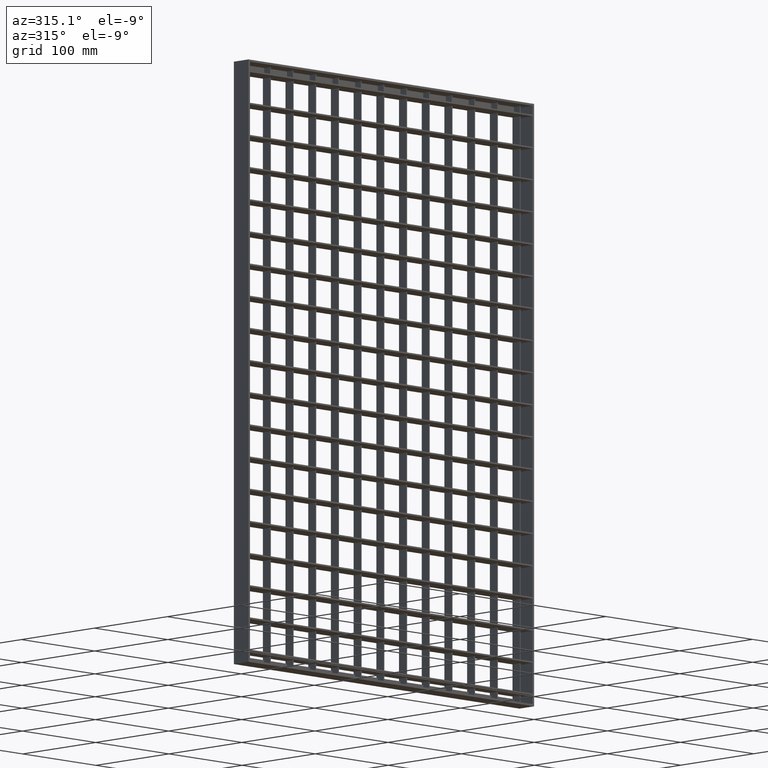
[diagram: clean part render]
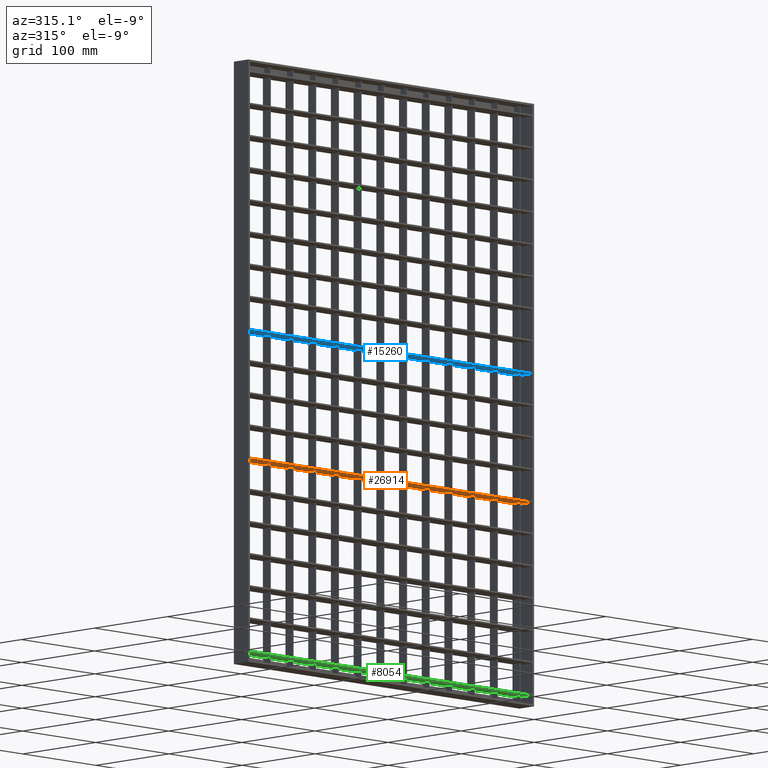
[diagram: same view with three faces highlighted in distinct colors, each labeled with its STEP entity id]
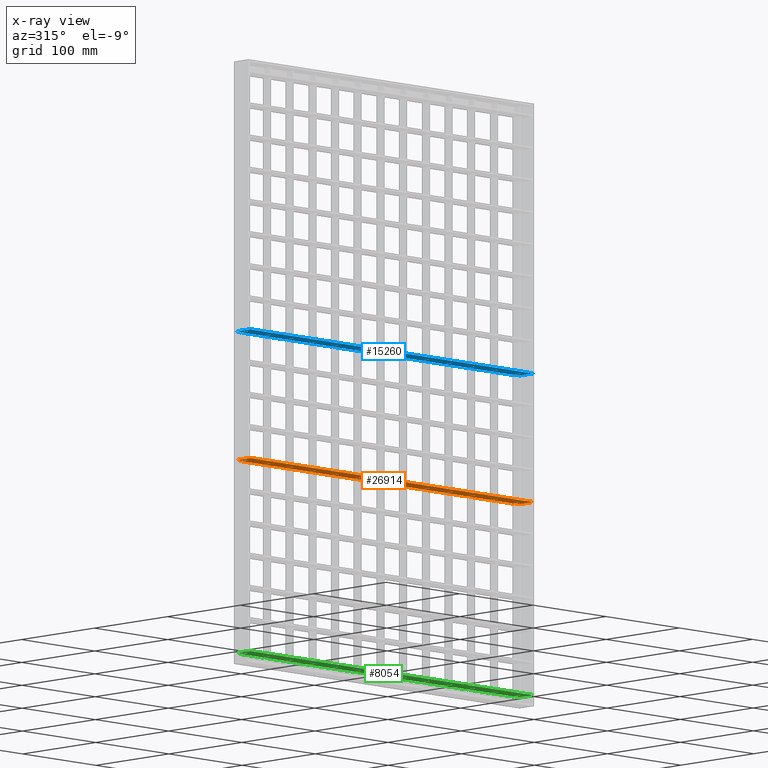
[diagram: x-ray of the same camera — body ghosted, the three highlighted faces saturated]
A machine part, auxiliary view with three faces highlighted in distinct colors.
The next image is the same camera in x-ray (body ghosted, the three faces saturated) — at least one of them is partly hidden behind the body in this view.
Their STEP definitions:

[orange] entity #26914 — the highlighted planar face has unit normal (0, 0, 1).
#86 = EDGE_CURVE ( 'NONE', #14298, #5267, #20602, .T. ) ;
#127 = ORIENTED_EDGE ( 'NONE', *, *, #8306, .F. ) ;
#271 = EDGE_CURVE ( 'NONE', #10549, #8467, #32142, .T. ) ;
#308 = VERTEX_POINT ( 'NONE', #35977 ) ;
#421 = ORIENTED_EDGE ( 'NONE', *, *, #26854, .T. ) ;
#474 = CARTESIAN_POINT ( 'NONE',  ( 225.5000000000000000, -9.999999999999879200, -390.2499999999995500 ) ) ;
#591 = ORIENTED_EDGE ( 'NONE', *, *, #38248, .T. ) ;
#706 = CARTESIAN_POINT ( 'NONE',  ( 256.5000000000000600, -9.999999999999879200, -390.2499999999995500 ) ) ;
#817 = VECTOR ( 'NONE', #31402, 1000.000000000000000 ) ;
#992 = VERTEX_POINT ( 'NONE', #39423 ) ;
#1002 = CARTESIAN_POINT ( 'NONE',  ( 71.50000000000001400, -9.999999999999879200, -390.2499999999995500 ) ) ;
#1201 = CARTESIAN_POINT ( 'NONE',  ( 408.0561711201315800, 10.00000000000012100, -390.2499999999995500 ) ) ;
#1494 = VECTOR ( 'NONE', #24521, 1000.000000000000000 ) ;
#1503 = CARTESIAN_POINT ( 'NONE',  ( 225.5000000000000000, 0.0000000000000000000, -390.2499999999995500 ) ) ;
#1540 = CARTESIAN_POINT ( 'NONE',  ( 408.0561711201315800, 10.00000000000012100, -390.2499999999995500 ) ) ;
#1628 = CARTESIAN_POINT ( 'NONE',  ( 408.0561711201315800, -6.938893903907228400E-015, -390.2499999999995500 ) ) ;
#2203 = VECTOR ( 'NONE', #14151, 1000.000000000000000 ) ;
#2370 = VECTOR ( 'NONE', #28359, 1000.000000000000000 ) ;
#2637 = VERTEX_POINT ( 'NONE', #37953 ) ;
#2766 = DIRECTION ( 'NONE',  ( 0.0000000000000000000, -1.000000000000000000, 0.0000000000000000000 ) ) ;
#2809 = CARTESIAN_POINT ( 'NONE',  ( 349.5000000000000600, 0.0000000000000000000, -390.2499999999995500 ) ) ;
#3039 = LINE ( 'NONE', #33684, #3503 ) ;
#3053 = VERTEX_POINT ( 'NONE', #13994 ) ;
#3073 = LINE ( 'NONE', #7718, #26343 ) ;
#3081 = DIRECTION ( 'NONE',  ( -0.0000000000000000000, 1.000000000000000000, 0.0000000000000000000 ) ) ;
#3101 = VECTOR ( 'NONE', #36110, 1000.000000000000000 ) ;
#3132 = LINE ( 'NONE', #35729, #26858 ) ;
#3156 = ORIENTED_EDGE ( 'NONE', *, *, #6024, .F. ) ;
#3234 = VERTEX_POINT ( 'NONE', #36573 ) ;
#3434 = CARTESIAN_POINT ( 'NONE',  ( 408.0561711201315800, -5.377642775528102000E-014, -390.2499999999995500 ) ) ;
#3503 = VECTOR ( 'NONE', #3081, 1000.000000000000000 ) ;
#3505 = LINE ( 'NONE', #30444, #36417 ) ;
#3538 = EDGE_CURVE ( 'NONE', #27816, #22358, #34740, .T. ) ;
#3542 = VECTOR ( 'NONE', #12261, 1000.000000000000000 ) ;
#3645 = VECTOR ( 'NONE', #19717, 1000.000000000000000 ) ;
#3803 = CARTESIAN_POINT ( 'NONE',  ( 408.0561711201315800, 10.00000000000012100, -390.2499999999995500 ) ) ;
#3832 = CARTESIAN_POINT ( 'NONE',  ( 388.0000000000000000, -10.00000000000000000, -390.2499999999995500 ) ) ;
#4064 = CARTESIAN_POINT ( 'NONE',  ( 350.5000000000000600, 10.00000000000010500, -390.2499999999995500 ) ) ;
#4245 = VECTOR ( 'NONE', #29164, 1000.000000000000000 ) ;
#4336 = LINE ( 'NONE', #706, #26611 ) ;
#4363 = CARTESIAN_POINT ( 'NONE',  ( 132.5000000000000000, 7.001226303889181300E-016, -390.2499999999995500 ) ) ;
#4385 = CARTESIAN_POINT ( 'NONE',  ( 194.5000000000000000, 10.00000000000005500, -390.2499999999995500 ) ) ;
#4486 = CARTESIAN_POINT ( 'NONE',  ( 8.500000000000007100, -9.999999999999879200, -390.2499999999995500 ) ) ;
#4491 = ORIENTED_EDGE ( 'NONE', *, *, #20266, .F. ) ;
#4535 = VECTOR ( 'NONE', #30662, 1000.000000000000000 ) ;
#4592 = DIRECTION ( 'NONE',  ( 1.000000000000000000, 3.061616997868381200E-016, -0.0000000000000000000 ) ) ;
#4680 = CARTESIAN_POINT ( 'NONE',  ( 195.5000000000000000, -9.999999999999879200, -390.2499999999995500 ) ) ;
#4763 = CARTESIAN_POINT ( 'NONE',  ( 319.5000000000000000, 10.00000000000009400, -390.2499999999995500 ) ) ;
#4823 = VERTEX_POINT ( 'NONE', #30790 ) ;
#4830 = CARTESIAN_POINT ( 'NONE',  ( 408.0561711201315800, -3.469446951953614200E-014, -390.2499999999995500 ) ) ;
#4839 = DIRECTION ( 'NONE',  ( 0.0000000000000000000, 1.000000000000000000, -0.0000000000000000000 ) ) ;
#5267 = VERTEX_POINT ( 'NONE', #36280 ) ;
#5310 = VECTOR ( 'NONE', #19379, 1000.000000000000000 ) ;
#5516 = FACE_OUTER_BOUND ( 'NONE', #14856, .T. ) ;
#5691 = EDGE_CURVE ( 'NONE', #22358, #5267, #14400, .T. ) ;
#5834 = CARTESIAN_POINT ( 'NONE',  ( 70.50000000000000000, 7.001226303889181300E-016, -390.2499999999995500 ) ) ;
#5909 = VECTOR ( 'NONE', #22394, 1000.000000000000000 ) ;
#5978 = VECTOR ( 'NONE', #7993, 1000.000000000000000 ) ;
#6024 = EDGE_CURVE ( 'NONE', #32157, #26583, #25511, .T. ) ;
#6327 = CARTESIAN_POINT ( 'NONE',  ( 39.49999999999997900, -9.999999999999879200, -390.2499999999995500 ) ) ;
#6328 = CARTESIAN_POINT ( 'NONE',  ( 2.000000000000003600, 8.000000000000001800, -390.2499999999995500 ) ) ;
#6452 = LINE ( 'NONE', #23688, #24343 ) ;
#6479 = LINE ( 'NONE', #27026, #30689 ) ;
#6642 = ORIENTED_EDGE ( 'NONE', *, *, #31112, .T. ) ;
#6646 = DIRECTION ( 'NONE',  ( 1.000000000000000000, 3.061616997868381200E-016, -0.0000000000000000000 ) ) ;
#6727 = DIRECTION ( 'NONE',  ( -0.0000000000000000000, 1.000000000000000000, 0.0000000000000000000 ) ) ;
#6911 = ORIENTED_EDGE ( 'NONE', *, *, #37247, .T. ) ;
#6934 = DIRECTION ( 'NONE',  ( 0.0000000000000000000, -1.000000000000000000, 0.0000000000000000000 ) ) ;
#7015 = VERTEX_POINT ( 'NONE', #6328 ) ;
#7118 = EDGE_CURVE ( 'NONE', #13808, #9405, #31720, .T. ) ;
#7221 = VERTEX_POINT ( 'NONE', #23628 ) ;
#7264 = CARTESIAN_POINT ( 'NONE',  ( 408.0561711201315800, -1.561251128379126400E-014, -390.2499999999995500 ) ) ;
#7267 = ORIENTED_EDGE ( 'NONE', *, *, #271, .F. ) ;
#7276 = CARTESIAN_POINT ( 'NONE',  ( 195.5000000000000000, 10.00000000000000200, -390.2499999999995500 ) ) ;
#7343 = EDGE_CURVE ( 'NONE', #7015, #3234, #39475, .T. ) ;
#7346 = ORIENTED_EDGE ( 'NONE', *, *, #10546, .T. ) ;
#7437 = DIRECTION ( 'NONE',  ( -1.000000000000000000, -3.061616997868382200E-016, 0.0000000000000000000 ) ) ;
#7467 = VERTEX_POINT ( 'NONE', #8754 ) ;
#7469 = EDGE_CURVE ( 'NONE', #24541, #17931, #36060, .T. ) ;
#7557 = CARTESIAN_POINT ( 'NONE',  ( 2.000000000000003600, 8.000000000000001800, -390.2499999999995500 ) ) ;
#7628 = ORIENTED_EDGE ( 'NONE', *, *, #3538, .T. ) ;
#7718 = CARTESIAN_POINT ( 'NONE',  ( 408.0561711201315800, 1.040834085586084300E-013, -390.2499999999995500 ) ) ;
#7723 = VERTEX_POINT ( 'NONE', #4385 ) ;
#7781 = VERTEX_POINT ( 'NONE', #26435 ) ;
#7919 = LINE ( 'NONE', #33776, #26809 ) ;
#7993 = DIRECTION ( 'NONE',  ( 1.000000000000000000, 3.061616997868381200E-016, -0.0000000000000000000 ) ) ;
#8015 = CARTESIAN_POINT ( 'NONE',  ( 408.0561711201315800, 10.00000000000012100, -390.2499999999995500 ) ) ;
#8074 = EDGE_CURVE ( 'NONE', #28099, #35489, #3073, .T. ) ;
#8196 = LINE ( 'NONE', #1628, #33863 ) ;
#8277 = ORIENTED_EDGE ( 'NONE', *, *, #16897, .F. ) ;
#8306 = EDGE_CURVE ( 'NONE', #32685, #37297, #16097, .T. ) ;
#8345 = CARTESIAN_POINT ( 'NONE',  ( 101.5000000000000000, 7.001226303889181300E-016, -390.2499999999995500 ) ) ;
#8428 = EDGE_CURVE ( 'NONE', #14298, #31011, #19034, .T. ) ;
#8467 = VERTEX_POINT ( 'NONE', #9607 ) ;
#8578 = VECTOR ( 'NONE', #23788, 1000.000000000000000 ) ;
#8630 = DIRECTION ( 'NONE',  ( -1.000000000000000000, -3.061616997868382200E-016, 0.0000000000000000000 ) ) ;
#8725 = EDGE_CURVE ( 'NONE', #35439, #11441, #28163, .T. ) ;
#8750 = ORIENTED_EDGE ( 'NONE', *, *, #38071, .T. ) ;
#8754 = CARTESIAN_POINT ( 'NONE',  ( 40.50000000000000700, 10.00000000000000200, -390.2499999999995500 ) ) ;
#8811 = DIRECTION ( 'NONE',  ( 1.000000000000000000, 3.061616997868381200E-016, -0.0000000000000000000 ) ) ;
#8912 = CARTESIAN_POINT ( 'NONE',  ( 408.0561711201315800, -9.999999999999879200, -390.2499999999995500 ) ) ;
#8931 = ORIENTED_EDGE ( 'NONE', *, *, #11797, .F. ) ;
#8977 = VERTEX_POINT ( 'NONE', #10862 ) ;
#9088 = LINE ( 'NONE', #39969, #37610 ) ;
#9116 = VECTOR ( 'NONE', #6727, 1000.000000000000000 ) ;
#9152 = ORIENTED_EDGE ( 'NONE', *, *, #21113, .F. ) ;
#9405 = VERTEX_POINT ( 'NONE', #12848 ) ;
#9573 = VERTEX_POINT ( 'NONE', #28756 ) ;
#9607 = CARTESIAN_POINT ( 'NONE',  ( 8.000000000000007100, 9.999999999999998200, -390.2499999999995500 ) ) ;
#9669 = CARTESIAN_POINT ( 'NONE',  ( 288.5000000000001100, -9.999999999999879200, -390.2499999999995500 ) ) ;
#9715 = CARTESIAN_POINT ( 'NONE',  ( 381.5000000000000600, 10.00000000000011400, -390.2499999999995500 ) ) ;
#9873 = LINE ( 'NONE', #18330, #3542 ) ;
#10054 = VECTOR ( 'NONE', #23353, 1000.000000000000000 ) ;
#10111 = CARTESIAN_POINT ( 'NONE',  ( 408.0561711201315800, -4.510281037539698400E-014, -390.2499999999995500 ) ) ;
#10135 = EDGE_CURVE ( 'NONE', #11631, #16083, #14990, .T. ) ;
#10205 = EDGE_CURVE ( 'NONE', #13188, #23656, #4336, .T. ) ;
#10308 = CARTESIAN_POINT ( 'NONE',  ( 163.5000000000000000, 7.001226303889181300E-016, -390.2499999999995500 ) ) ;
#10424 = ORIENTED_EDGE ( 'NONE', *, *, #33859, .T. ) ;
#10535 = VECTOR ( 'NONE', #28134, 1000.000000000000000 ) ;
#10546 = EDGE_CURVE ( 'NONE', #7781, #32036, #24630, .T. ) ;
#10549 = VERTEX_POINT ( 'NONE', #28481 ) ;
#10617 = VECTOR ( 'NONE', #37284, 1000.000000000000000 ) ;
#10710 = ORIENTED_EDGE ( 'NONE', *, *, #14531, .F. ) ;
#10719 = LINE ( 'NONE', #12051, #22811 ) ;
#10736 = LINE ( 'NONE', #18623, #25710 ) ;
#10769 = ORIENTED_EDGE ( 'NONE', *, *, #33854, .T. ) ;
#10821 = ORIENTED_EDGE ( 'NONE', *, *, #13906, .T. ) ;
#10862 = CARTESIAN_POINT ( 'NONE',  ( 226.5000000000000000, 10.00000000000006600, -390.2499999999995500 ) ) ;
#10883 = VERTEX_POINT ( 'NONE', #30365 ) ;
#10988 = EDGE_CURVE ( 'NONE', #26314, #2637, #17358, .T. ) ;
#11064 = CARTESIAN_POINT ( 'NONE',  ( 164.5000000000000000, 10.00000000000000200, -390.2499999999995500 ) ) ;
#11192 = DIRECTION ( 'NONE',  ( -0.0000000000000000000, -1.000000000000000000, 0.0000000000000000000 ) ) ;
#11256 = CARTESIAN_POINT ( 'NONE',  ( 288.5000000000001100, 1.909051050609410800E-015, -390.2499999999995500 ) ) ;
#11295 = VECTOR ( 'NONE', #26328, 1000.000000000000000 ) ;
#11441 = VERTEX_POINT ( 'NONE', #16601 ) ;
#11503 = EDGE_CURVE ( 'NONE', #12478, #7015, #16810, .T. ) ;
#11631 = VERTEX_POINT ( 'NONE', #17282 ) ;
#11738 = ORIENTED_EDGE ( 'NONE', *, *, #10988, .T. ) ;
#11752 = LINE ( 'NONE', #35579, #5978 ) ;
#11775 = VERTEX_POINT ( 'NONE', #24437 ) ;
#11797 = EDGE_CURVE ( 'NONE', #16247, #28198, #9088, .T. ) ;
#11883 = DIRECTION ( 'NONE',  ( 0.0000000000000000000, 0.0000000000000000000, 1.000000000000000000 ) ) ;
#11890 = DIRECTION ( 'NONE',  ( 0.0000000000000000000, -1.000000000000000000, 0.0000000000000000000 ) ) ;
#11943 = DIRECTION ( 'NONE',  ( -1.000000000000000000, -3.061616997868382200E-016, 0.0000000000000000000 ) ) ;
#12051 = CARTESIAN_POINT ( 'NONE',  ( 164.5000000000000000, -9.999999999999879200, -390.2499999999995500 ) ) ;
#12058 = LINE ( 'NONE', #1002, #40078 ) ;
#12124 = DIRECTION ( 'NONE',  ( -1.000000000000000000, -3.061616997868382200E-016, 0.0000000000000000000 ) ) ;
#12144 = LINE ( 'NONE', #30109, #34872 ) ;
#12171 = ORIENTED_EDGE ( 'NONE', *, *, #37206, .T. ) ;
#12261 = DIRECTION ( 'NONE',  ( -0.0000000000000000000, 1.000000000000000000, 0.0000000000000000000 ) ) ;
#12478 = VERTEX_POINT ( 'NONE', #19881 ) ;
#12513 = EDGE_CURVE ( 'NONE', #24067, #24236, #34641, .T. ) ;
#12550 = CARTESIAN_POINT ( 'NONE',  ( 287.5000000000001100, -9.999999999999879200, -390.2499999999995500 ) ) ;
#12578 = ORIENTED_EDGE ( 'NONE', *, *, #33371, .F. ) ;
#12848 = CARTESIAN_POINT ( 'NONE',  ( 287.5000000000001100, 0.0000000000000000000, -390.2499999999995500 ) ) ;
#12956 = CARTESIAN_POINT ( 'NONE',  ( 133.5000000000000000, -9.999999999999879200, -390.2499999999995500 ) ) ;
#13045 = ORIENTED_EDGE ( 'NONE', *, *, #8074, .T. ) ;
#13134 = CARTESIAN_POINT ( 'NONE',  ( 194.5000000000000000, 7.001226303889181300E-016, -390.2499999999995500 ) ) ;
#13188 = VERTEX_POINT ( 'NONE', #20361 ) ;
#13228 = LINE ( 'NONE', #33265, #4535 ) ;
#13283 = DIRECTION ( 'NONE',  ( 0.0000000000000000000, -1.000000000000000000, 0.0000000000000000000 ) ) ;
#13482 = CARTESIAN_POINT ( 'NONE',  ( 163.5000000000000000, -9.999999999999879200, -390.2499999999995500 ) ) ;
#13539 = LINE ( 'NONE', #3803, #5310 ) ;
#13808 = VERTEX_POINT ( 'NONE', #11256 ) ;
#13844 = EDGE_CURVE ( 'NONE', #26257, #37890, #37406, .T. ) ;
#13906 = EDGE_CURVE ( 'NONE', #31011, #37688, #6452, .T. ) ;
#13965 = EDGE_CURVE ( 'NONE', #8467, #12478, #36394, .T. ) ;
#13994 = CARTESIAN_POINT ( 'NONE',  ( 71.50000000000001400, 10.00000000000000200, -390.2499999999995500 ) ) ;
#14113 = LINE ( 'NONE', #10111, #5909 ) ;
#14137 = VECTOR ( 'NONE', #16032, 1000.000000000000000 ) ;
#14151 = DIRECTION ( 'NONE',  ( -1.000000000000000000, -3.061616997868382200E-016, 0.0000000000000000000 ) ) ;
#14259 = CARTESIAN_POINT ( 'NONE',  ( 408.0561711201315800, -2.602085213965210600E-014, -390.2499999999995500 ) ) ;
#14298 = VERTEX_POINT ( 'NONE', #16463 ) ;
#14308 = CARTESIAN_POINT ( 'NONE',  ( 408.0561711201315800, 10.00000000000012100, -390.2499999999995500 ) ) ;
#14400 = LINE ( 'NONE', #12956, #9116 ) ;
#14419 = CARTESIAN_POINT ( 'NONE',  ( 382.0000000000000000, 8.000000000000001800, -390.2499999999995500 ) ) ;
#14458 = EDGE_CURVE ( 'NONE', #9573, #13188, #14113, .T. ) ;
#14531 = EDGE_CURVE ( 'NONE', #308, #2637, #35406, .T. ) ;
#14580 = LINE ( 'NONE', #34129, #1494 ) ;
#14596 = DIRECTION ( 'NONE',  ( 1.000000000000000000, 3.061616997868381200E-016, -0.0000000000000000000 ) ) ;
#14629 = ORIENTED_EDGE ( 'NONE', *, *, #31637, .F. ) ;
#14734 = EDGE_CURVE ( 'NONE', #7221, #32685, #39729, .T. ) ;
#14856 = EDGE_LOOP ( 'NONE', ( #127, #21932, #29777, #4491, #7346, #27691, #23684, #29650, #30489, #7267, #12171, #17835, #27834, #35045, #29666, #10769, #33222, #18372, #8750, #13045, #29586, #39472, #20912, #6642, #11738, #10710, #421, #7628, #17549, #31387, #35753, #10821, #10424, #8277, #6911, #28848, #591, #31076, #36805, #30506, #35904, #30605, #36270, #19435, #21209, #14928, #30379, #36255, #12578, #8931, #32726, #3156, #9152, #33451, #15068, #14629, #26059, #33858, #31830, #29187 ) ) ;
#14862 = CARTESIAN_POINT ( 'NONE',  ( 408.0561711201315800, 6.765421556309547700E-014, -390.2499999999995500 ) ) ;
#14928 = ORIENTED_EDGE ( 'NONE', *, *, #19151, .F. ) ;
#14990 = LINE ( 'NONE', #3434, #33886 ) ;
#15068 = ORIENTED_EDGE ( 'NONE', *, *, #30867, .F. ) ;
#15115 = CARTESIAN_POINT ( 'NONE',  ( 256.5000000000000600, 10.00000000000000200, -390.2499999999995500 ) ) ;
#15310 = VECTOR ( 'NONE', #8811, 1000.000000000000000 ) ;
#15628 = DIRECTION ( 'NONE',  ( 0.0000000000000000000, -1.000000000000000000, 0.0000000000000000000 ) ) ;
#15785 = CARTESIAN_POINT ( 'NONE',  ( 164.5000000000000000, 1.006284330175756500E-015, -390.2499999999995500 ) ) ;
#16032 = DIRECTION ( 'NONE',  ( -0.0000000000000000000, 1.000000000000000000, 0.0000000000000000000 ) ) ;
#16075 = DIRECTION ( 'NONE',  ( -1.000000000000000000, -3.061616997868382200E-016, 0.0000000000000000000 ) ) ;
#16083 = VERTEX_POINT ( 'NONE', #1503 ) ;
#16097 = LINE ( 'NONE', #24596, #25326 ) ;
#16247 = VERTEX_POINT ( 'NONE', #17211 ) ;
#16463 = CARTESIAN_POINT ( 'NONE',  ( 163.5000000000000000, 10.00000000000004600, -390.2499999999995500 ) ) ;
#16601 = CARTESIAN_POINT ( 'NONE',  ( 350.5000000000000600, 2.008983899570346800E-015, -390.2499999999995500 ) ) ;
#16755 = DIRECTION ( 'NONE',  ( -1.000000000000000000, -3.061616997868382200E-016, 0.0000000000000000000 ) ) ;
#16810 = LINE ( 'NONE', #7557, #4245 ) ;
#16897 = EDGE_CURVE ( 'NONE', #7723, #30460, #39515, .T. ) ;
#16955 = CARTESIAN_POINT ( 'NONE',  ( 319.5000000000000000, 1.091655737101492400E-015, -390.2499999999995500 ) ) ;
#16987 = DIRECTION ( 'NONE',  ( -1.000000000000000000, 3.061616997868381200E-016, 0.0000000000000000000 ) ) ;
#17089 = VECTOR ( 'NONE', #35144, 1000.000000000000000 ) ;
#17143 = VECTOR ( 'NONE', #7437, 1000.000000000000000 ) ;
#17211 = CARTESIAN_POINT ( 'NONE',  ( 318.5000000000000000, 10.00000000000000200, -390.2499999999995500 ) ) ;
#17253 = CARTESIAN_POINT ( 'NONE',  ( 319.5000000000000000, -9.999999999999879200, -390.2499999999995500 ) ) ;
#17282 = CARTESIAN_POINT ( 'NONE',  ( 226.5000000000000300, 1.809118201648508700E-015, -390.2499999999995500 ) ) ;
#17295 = CARTESIAN_POINT ( 'NONE',  ( 408.0561711201315800, 10.00000000000012100, -390.2499999999995500 ) ) ;
#17358 = LINE ( 'NONE', #27386, #32384 ) ;
#17446 = CARTESIAN_POINT ( 'NONE',  ( 408.0561711201315800, 1.231653667943533000E-013, -390.2499999999995500 ) ) ;
#17549 = ORIENTED_EDGE ( 'NONE', *, *, #5691, .T. ) ;
#17835 = ORIENTED_EDGE ( 'NONE', *, *, #25287, .T. ) ;
#17931 = VERTEX_POINT ( 'NONE', #4763 ) ;
#18330 = CARTESIAN_POINT ( 'NONE',  ( 349.5000000000000600, -9.999999999999879200, -390.2499999999995500 ) ) ;
#18372 = ORIENTED_EDGE ( 'NONE', *, *, #26719, .F. ) ;
#18623 = CARTESIAN_POINT ( 'NONE',  ( 408.0561711201315800, 10.00000000000012100, -390.2499999999995500 ) ) ;
#18759 = DIRECTION ( 'NONE',  ( -1.000000000000000000, -3.061616997868382200E-016, 0.0000000000000000000 ) ) ;
#19034 = LINE ( 'NONE', #13482, #17089 ) ;
#19151 = EDGE_CURVE ( 'NONE', #35367, #11775, #3505, .T. ) ;
#19379 = DIRECTION ( 'NONE',  ( -1.000000000000000000, -3.061616997868382200E-016, 0.0000000000000000000 ) ) ;
#19434 = CARTESIAN_POINT ( 'NONE',  ( 9.500000000000008900, 1.006284330175756500E-015, -390.2499999999995500 ) ) ;
#19435 = ORIENTED_EDGE ( 'NONE', *, *, #14458, .F. ) ;
#19439 = LINE ( 'NONE', #9669, #22341 ) ;
#19544 = EDGE_CURVE ( 'NONE', #27292, #35439, #39792, .T. ) ;
#19550 = LINE ( 'NONE', #17295, #17143 ) ;
#19609 = CARTESIAN_POINT ( 'NONE',  ( 318.5000000000000000, 0.0000000000000000000, -390.2499999999995500 ) ) ;
#19717 = DIRECTION ( 'NONE',  ( -1.000000000000000000, 3.061616997868381200E-016, 0.0000000000000000000 ) ) ;
#19774 = VECTOR ( 'NONE', #34948, 1000.000000000000000 ) ;
#19881 = CARTESIAN_POINT ( 'NONE',  ( 7.999999999999996400, 8.000000000000001800, -390.2499999999995500 ) ) ;
#19887 = CARTESIAN_POINT ( 'NONE',  ( 39.50000000000000700, 7.001226303889181300E-016, -390.2499999999995500 ) ) ;
#19922 = LINE ( 'NONE', #14419, #38745 ) ;
#19958 = EDGE_CURVE ( 'NONE', #10883, #32533, #10736, .T. ) ;
#20104 = CARTESIAN_POINT ( 'NONE',  ( 8.500000000000007100, 7.001226303889181300E-016, -390.2499999999995500 ) ) ;
#20266 = EDGE_CURVE ( 'NONE', #7781, #36045, #33448, .T. ) ;
#20361 = CARTESIAN_POINT ( 'NONE',  ( 256.5000000000000600, 0.0000000000000000000, -390.2499999999995500 ) ) ;
#20443 = CARTESIAN_POINT ( 'NONE',  ( 408.0561711201315800, 10.00000000000012100, -390.2499999999995500 ) ) ;
#20602 = LINE ( 'NONE', #33984, #22997 ) ;
#20610 = VECTOR ( 'NONE', #38509, 1000.000000000000000 ) ;
#20691 = DIRECTION ( 'NONE',  ( 0.0000000000000000000, -1.000000000000000000, 0.0000000000000000000 ) ) ;
#20750 = EDGE_CURVE ( 'NONE', #10883, #26668, #29953, .T. ) ;
#20803 = EDGE_CURVE ( 'NONE', #9405, #35367, #37223, .T. ) ;
#20912 = ORIENTED_EDGE ( 'NONE', *, *, #12513, .T. ) ;
#21035 = EDGE_CURVE ( 'NONE', #35489, #3053, #12058, .T. ) ;
#21113 = EDGE_CURVE ( 'NONE', #17931, #32157, #31870, .T. ) ;
#21125 = CARTESIAN_POINT ( 'NONE',  ( 7.999999999999996400, 8.000000000000001800, -390.2499999999995500 ) ) ;
#21209 = ORIENTED_EDGE ( 'NONE', *, *, #24981, .F. ) ;
#21399 = EDGE_CURVE ( 'NONE', #26806, #27292, #27978, .T. ) ;
#21476 = DIRECTION ( 'NONE',  ( 1.000000000000000000, 0.0000000000000000000, -0.0000000000000000000 ) ) ;
#21714 = DIRECTION ( 'NONE',  ( -1.000000000000000000, 3.061616997868381200E-016, 0.0000000000000000000 ) ) ;
#21848 = VECTOR ( 'NONE', #23079, 1000.000000000000000 ) ;
#21932 = ORIENTED_EDGE ( 'NONE', *, *, #14734, .F. ) ;
#22034 = VERTEX_POINT ( 'NONE', #13134 ) ;
#22288 = VECTOR ( 'NONE', #23214, 1000.000000000000000 ) ;
#22341 = VECTOR ( 'NONE', #6934, 1000.000000000000000 ) ;
#22358 = VERTEX_POINT ( 'NONE', #35967 ) ;
#22394 = DIRECTION ( 'NONE',  ( -1.000000000000000000, 3.061616997868381200E-016, 0.0000000000000000000 ) ) ;
#22508 = LINE ( 'NONE', #4486, #28771 ) ;
#22811 = VECTOR ( 'NONE', #24617, 1000.000000000000000 ) ;
#22961 = CARTESIAN_POINT ( 'NONE',  ( 408.0561711201315800, 10.00000000000012100, -390.2499999999995500 ) ) ;
#22997 = VECTOR ( 'NONE', #37202, 1000.000000000000000 ) ;
#23011 = CARTESIAN_POINT ( 'NONE',  ( 287.5000000000001100, 10.00000000000000200, -390.2499999999995500 ) ) ;
#23079 = DIRECTION ( 'NONE',  ( -1.000000000000000000, -3.061616997868382200E-016, 0.0000000000000000000 ) ) ;
#23214 = DIRECTION ( 'NONE',  ( -1.000000000000000000, 0.0000000000000000000, 0.0000000000000000000 ) ) ;
#23353 = DIRECTION ( 'NONE',  ( -1.000000000000000000, 3.061616997868381200E-016, 0.0000000000000000000 ) ) ;
#23615 = CARTESIAN_POINT ( 'NONE',  ( 225.5000000000000000, 10.00000000000000200, -390.2499999999995500 ) ) ;
#23628 = CARTESIAN_POINT ( 'NONE',  ( 382.0000000000000000, 10.00000000000000400, -390.2499999999995500 ) ) ;
#23656 = VERTEX_POINT ( 'NONE', #15115 ) ;
#23684 = ORIENTED_EDGE ( 'NONE', *, *, #7343, .F. ) ;
#23688 = CARTESIAN_POINT ( 'NONE',  ( 408.0561711201315800, 7.632783294297951200E-014, -390.2499999999995500 ) ) ;
#23788 = DIRECTION ( 'NONE',  ( -1.000000000000000000, -3.061616997868382200E-016, 0.0000000000000000000 ) ) ;
#23955 = VERTEX_POINT ( 'NONE', #32143 ) ;
#23981 = DIRECTION ( 'NONE',  ( 0.0000000000000000000, -1.000000000000000000, 0.0000000000000000000 ) ) ;
#24067 = VERTEX_POINT ( 'NONE', #32822 ) ;
#24189 = PLANE ( 'NONE',  #35365 ) ;
#24236 = VERTEX_POINT ( 'NONE', #8345 ) ;
#24343 = VECTOR ( 'NONE', #32494, 1000.000000000000000 ) ;
#24437 = CARTESIAN_POINT ( 'NONE',  ( 257.5000000000000600, 10.00000000000007500, -390.2499999999995500 ) ) ;
#24517 = CARTESIAN_POINT ( 'NONE',  ( 350.5000000000000600, -9.999999999999879200, -390.2499999999995500 ) ) ;
#24521 = DIRECTION ( 'NONE',  ( -0.0000000000000000000, 1.000000000000000000, 0.0000000000000000000 ) ) ;
#24536 = LINE ( 'NONE', #17446, #36631 ) ;
#24541 = VERTEX_POINT ( 'NONE', #32385 ) ;
#24596 = CARTESIAN_POINT ( 'NONE',  ( 381.5000000000000600, -9.999999999999879200, -390.2499999999995500 ) ) ;
#24617 = DIRECTION ( 'NONE',  ( -0.0000000000000000000, 1.000000000000000000, 0.0000000000000000000 ) ) ;
#24630 = LINE ( 'NONE', #25408, #2370 ) ;
#24836 = LINE ( 'NONE', #4680, #11295 ) ;
#24981 = EDGE_CURVE ( 'NONE', #11775, #9573, #31317, .T. ) ;
#25065 = EDGE_CURVE ( 'NONE', #32036, #3234, #31826, .T. ) ;
#25130 = VECTOR ( 'NONE', #2766, 1000.000000000000000 ) ;
#25173 = CARTESIAN_POINT ( 'NONE',  ( 408.0561711201315800, 8.500145032286354800E-014, -390.2499999999995500 ) ) ;
#25215 = LINE ( 'NONE', #26932, #37775 ) ;
#25232 = VECTOR ( 'NONE', #16075, 1000.000000000000000 ) ;
#25287 = EDGE_CURVE ( 'NONE', #27366, #28899, #24536, .T. ) ;
#25326 = VECTOR ( 'NONE', #11890, 1000.000000000000000 ) ;
#25408 = CARTESIAN_POINT ( 'NONE',  ( 388.0000000000000000, -9.999999999999879200, -390.2499999999995500 ) ) ;
#25425 = EDGE_CURVE ( 'NONE', #22034, #992, #35176, .T. ) ;
#25511 = LINE ( 'NONE', #14259, #10054 ) ;
#25595 = CARTESIAN_POINT ( 'NONE',  ( 408.0561711201315800, -9.999999999999879200, -390.2499999999995500 ) ) ;
#25710 = VECTOR ( 'NONE', #18759, 1000.000000000000000 ) ;
#25843 = EDGE_CURVE ( 'NONE', #23656, #8977, #31245, .T. ) ;
#26059 = ORIENTED_EDGE ( 'NONE', *, *, #8725, .F. ) ;
#26257 = VERTEX_POINT ( 'NONE', #23615 ) ;
#26314 = VERTEX_POINT ( 'NONE', #36176 ) ;
#26328 = DIRECTION ( 'NONE',  ( -0.0000000000000000000, 1.000000000000000000, 0.0000000000000000000 ) ) ;
#26343 = VECTOR ( 'NONE', #4592, 1000.000000000000000 ) ;
#26435 = CARTESIAN_POINT ( 'NONE',  ( 387.9999999999998900, 8.000000000000001800, -390.2499999999995500 ) ) ;
#26525 = VECTOR ( 'NONE', #6646, 1000.000000000000000 ) ;
#26583 = VERTEX_POINT ( 'NONE', #19609 ) ;
#26611 = VECTOR ( 'NONE', #37920, 1000.000000000000000 ) ;
#26668 = VERTEX_POINT ( 'NONE', #19887 ) ;
#26719 = EDGE_CURVE ( 'NONE', #23955, #7467, #19550, .T. ) ;
#26806 = VERTEX_POINT ( 'NONE', #39045 ) ;
#26809 = VECTOR ( 'NONE', #39824, 1000.000000000000000 ) ;
#26854 = EDGE_CURVE ( 'NONE', #308, #27816, #6479, .T. ) ;
#26858 = VECTOR ( 'NONE', #35589, 1000.000000000000000 ) ;
#26888 = EDGE_CURVE ( 'NONE', #8977, #11631, #13228, .T. ) ;
#26914 = ADVANCED_FACE ( 'NONE', ( #5516 ), #24189, .F. ) ;
#26932 = CARTESIAN_POINT ( 'NONE',  ( 408.0561711201315800, 1.144917494144692700E-013, -390.2499999999995500 ) ) ;
#27026 = CARTESIAN_POINT ( 'NONE',  ( 132.5000000000000000, -9.999999999999879200, -390.2499999999995500 ) ) ;
#27254 = CARTESIAN_POINT ( 'NONE',  ( 408.0561711201315800, 10.00000000000012100, -390.2499999999995500 ) ) ;
#27292 = VERTEX_POINT ( 'NONE', #38595 ) ;
#27366 = VERTEX_POINT ( 'NONE', #20104 ) ;
#27386 = CARTESIAN_POINT ( 'NONE',  ( 102.5000000000000300, -9.999999999999879200, -390.2499999999995500 ) ) ;
#27665 = CARTESIAN_POINT ( 'NONE',  ( 9.500000000000008900, 10.00000000000000200, -390.2499999999995500 ) ) ;
#27691 = ORIENTED_EDGE ( 'NONE', *, *, #25065, .T. ) ;
#27768 = EDGE_CURVE ( 'NONE', #24067, #3053, #13539, .T. ) ;
#27816 = VERTEX_POINT ( 'NONE', #4363 ) ;
#27834 = ORIENTED_EDGE ( 'NONE', *, *, #32471, .T. ) ;
#27845 = DIRECTION ( 'NONE',  ( 1.000000000000000000, 3.061616997868381200E-016, -0.0000000000000000000 ) ) ;
#27877 = CARTESIAN_POINT ( 'NONE',  ( 257.5000000000000600, -9.999999999999879200, -390.2499999999995500 ) ) ;
#27978 = LINE ( 'NONE', #28838, #19774 ) ;
#28057 = EDGE_CURVE ( 'NONE', #37297, #26806, #8196, .T. ) ;
#28099 = VERTEX_POINT ( 'NONE', #5834 ) ;
#28134 = DIRECTION ( 'NONE',  ( 0.0000000000000000000, -1.000000000000000000, 0.0000000000000000000 ) ) ;
#28150 = VECTOR ( 'NONE', #33565, 1000.000000000000000 ) ;
#28163 = LINE ( 'NONE', #24517, #28669 ) ;
#28198 = VERTEX_POINT ( 'NONE', #37187 ) ;
#28359 = DIRECTION ( 'NONE',  ( 0.0000000000000000000, -1.000000000000000000, 0.0000000000000000000 ) ) ;
#28481 = CARTESIAN_POINT ( 'NONE',  ( 8.500000000000007100, 9.999999999999998200, -390.2499999999995500 ) ) ;
#28636 = LINE ( 'NONE', #474, #14137 ) ;
#28669 = VECTOR ( 'NONE', #23981, 1000.000000000000000 ) ;
#28756 = CARTESIAN_POINT ( 'NONE',  ( 257.5000000000000600, 9.917228881405591400E-016, -390.2499999999995500 ) ) ;
#28771 = VECTOR ( 'NONE', #13283, 1000.000000000000000 ) ;
#28838 = CARTESIAN_POINT ( 'NONE',  ( 380.5000000000000600, -9.999999999999879200, -390.2499999999995500 ) ) ;
#28848 = ORIENTED_EDGE ( 'NONE', *, *, #25425, .T. ) ;
#28899 = VERTEX_POINT ( 'NONE', #19434 ) ;
#29164 = DIRECTION ( 'NONE',  ( -1.000000000000000000, 0.0000000000000000000, 0.0000000000000000000 ) ) ;
#29187 = ORIENTED_EDGE ( 'NONE', *, *, #28057, .F. ) ;
#29281 = CARTESIAN_POINT ( 'NONE',  ( 382.0000000000000000, 8.000000000000001800, -390.2499999999995500 ) ) ;
#29586 = ORIENTED_EDGE ( 'NONE', *, *, #21035, .T. ) ;
#29620 = DIRECTION ( 'NONE',  ( -1.000000000000000000, -3.061616997868382200E-016, 0.0000000000000000000 ) ) ;
#29622 = LINE ( 'NONE', #7264, #32043 ) ;
#29650 = ORIENTED_EDGE ( 'NONE', *, *, #11503, .F. ) ;
#29666 = ORIENTED_EDGE ( 'NONE', *, *, #20750, .T. ) ;
#29777 = ORIENTED_EDGE ( 'NONE', *, *, #34360, .F. ) ;
#29953 = LINE ( 'NONE', #6327, #35297 ) ;
#30109 = CARTESIAN_POINT ( 'NONE',  ( 9.500000000000008900, -9.999999999999879200, -390.2499999999995500 ) ) ;
#30365 = CARTESIAN_POINT ( 'NONE',  ( 39.49999999999997900, 10.00000000000000900, -390.2499999999995500 ) ) ;
#30379 = ORIENTED_EDGE ( 'NONE', *, *, #20803, .F. ) ;
#30444 = CARTESIAN_POINT ( 'NONE',  ( 408.0561711201315800, 10.00000000000012100, -390.2499999999995500 ) ) ;
#30460 = VERTEX_POINT ( 'NONE', #11064 ) ;
#30489 = ORIENTED_EDGE ( 'NONE', *, *, #13965, .F. ) ;
#30506 = ORIENTED_EDGE ( 'NONE', *, *, #10135, .F. ) ;
#30605 = ORIENTED_EDGE ( 'NONE', *, *, #25843, .F. ) ;
#30662 = DIRECTION ( 'NONE',  ( 0.0000000000000000000, -1.000000000000000000, 0.0000000000000000000 ) ) ;
#30689 = VECTOR ( 'NONE', #20691, 1000.000000000000000 ) ;
#30790 = CARTESIAN_POINT ( 'NONE',  ( 40.50000000000000700, 1.006284330175756500E-015, -390.2499999999995500 ) ) ;
#30867 = EDGE_CURVE ( 'NONE', #35693, #24541, #9873, .T. ) ;
#31011 = VERTEX_POINT ( 'NONE', #10308 ) ;
#31076 = ORIENTED_EDGE ( 'NONE', *, *, #13844, .F. ) ;
#31112 = EDGE_CURVE ( 'NONE', #24236, #26314, #11752, .T. ) ;
#31245 = LINE ( 'NONE', #22961, #2203 ) ;
#31274 = EDGE_CURVE ( 'NONE', #26583, #16247, #3039, .T. ) ;
#31317 = LINE ( 'NONE', #27877, #10535 ) ;
#31387 = ORIENTED_EDGE ( 'NONE', *, *, #86, .F. ) ;
#31402 = DIRECTION ( 'NONE',  ( -1.000000000000000000, -3.061616997868382200E-016, 0.0000000000000000000 ) ) ;
#31543 = EDGE_CURVE ( 'NONE', #16083, #26257, #28636, .T. ) ;
#31637 = EDGE_CURVE ( 'NONE', #11441, #35693, #29622, .T. ) ;
#31720 = LINE ( 'NONE', #4830, #3645 ) ;
#31826 = LINE ( 'NONE', #25595, #817 ) ;
#31830 = ORIENTED_EDGE ( 'NONE', *, *, #21399, .F. ) ;
#31870 = LINE ( 'NONE', #17253, #25130 ) ;
#32036 = VERTEX_POINT ( 'NONE', #3832 ) ;
#32043 = VECTOR ( 'NONE', #16987, 1000.000000000000000 ) ;
#32103 = VECTOR ( 'NONE', #29620, 1000.000000000000000 ) ;
#32142 = LINE ( 'NONE', #20443, #3101 ) ;
#32143 = CARTESIAN_POINT ( 'NONE',  ( 70.49999999999995700, 10.00000000000001800, -390.2499999999995500 ) ) ;
#32157 = VERTEX_POINT ( 'NONE', #16955 ) ;
#32384 = VECTOR ( 'NONE', #37260, 1000.000000000000000 ) ;
#32385 = CARTESIAN_POINT ( 'NONE',  ( 349.5000000000000600, 10.00000000000000200, -390.2499999999995500 ) ) ;
#32471 = EDGE_CURVE ( 'NONE', #28899, #32533, #12144, .T. ) ;
#32494 = DIRECTION ( 'NONE',  ( 1.000000000000000000, 3.061616997868381200E-016, -0.0000000000000000000 ) ) ;
#32533 = VERTEX_POINT ( 'NONE', #27665 ) ;
#32685 = VERTEX_POINT ( 'NONE', #9715 ) ;
#32726 = ORIENTED_EDGE ( 'NONE', *, *, #31274, .F. ) ;
#32822 = CARTESIAN_POINT ( 'NONE',  ( 101.4999999999999900, 10.00000000000002800, -390.2499999999995500 ) ) ;
#32892 = DIRECTION ( 'NONE',  ( -1.000000000000000000, 3.061616997868381200E-016, 0.0000000000000000000 ) ) ;
#32978 = DIRECTION ( 'NONE',  ( -0.0000000000000000000, 1.000000000000000000, 0.0000000000000000000 ) ) ;
#33222 = ORIENTED_EDGE ( 'NONE', *, *, #34413, .T. ) ;
#33265 = CARTESIAN_POINT ( 'NONE',  ( 226.5000000000000000, -9.999999999999879200, -390.2499999999995500 ) ) ;
#33371 = EDGE_CURVE ( 'NONE', #28198, #13808, #19439, .T. ) ;
#33448 = LINE ( 'NONE', #38600, #22288 ) ;
#33451 = ORIENTED_EDGE ( 'NONE', *, *, #7469, .F. ) ;
#33565 = DIRECTION ( 'NONE',  ( -0.0000000000000000000, -1.000000000000000000, 0.0000000000000000000 ) ) ;
#33684 = CARTESIAN_POINT ( 'NONE',  ( 318.5000000000000000, -9.999999999999879200, -390.2499999999995500 ) ) ;
#33776 = CARTESIAN_POINT ( 'NONE',  ( 70.50000000000000000, -9.999999999999879200, -390.2499999999995500 ) ) ;
#33854 = EDGE_CURVE ( 'NONE', #26668, #4823, #25215, .T. ) ;
#33858 = ORIENTED_EDGE ( 'NONE', *, *, #19544, .F. ) ;
#33859 = EDGE_CURVE ( 'NONE', #37688, #30460, #10719, .T. ) ;
#33863 = VECTOR ( 'NONE', #32892, 1000.000000000000000 ) ;
#33886 = VECTOR ( 'NONE', #21714, 1000.000000000000000 ) ;
#33984 = CARTESIAN_POINT ( 'NONE',  ( 408.0561711201315800, 10.00000000000012100, -390.2499999999995500 ) ) ;
#34129 = CARTESIAN_POINT ( 'NONE',  ( 40.49999999999997900, -9.999999999999879200, -390.2499999999995500 ) ) ;
#34360 = EDGE_CURVE ( 'NONE', #36045, #7221, #19922, .T. ) ;
#34413 = EDGE_CURVE ( 'NONE', #4823, #7467, #14580, .T. ) ;
#34641 = LINE ( 'NONE', #35696, #20610 ) ;
#34740 = LINE ( 'NONE', #25173, #26525 ) ;
#34872 = VECTOR ( 'NONE', #32978, 1000.000000000000000 ) ;
#34948 = DIRECTION ( 'NONE',  ( -0.0000000000000000000, 1.000000000000000000, 0.0000000000000000000 ) ) ;
#34956 = VECTOR ( 'NONE', #16755, 1000.000000000000000 ) ;
#35045 = ORIENTED_EDGE ( 'NONE', *, *, #19958, .F. ) ;
#35144 = DIRECTION ( 'NONE',  ( 0.0000000000000000000, -1.000000000000000000, 0.0000000000000000000 ) ) ;
#35151 = VECTOR ( 'NONE', #11192, 1000.000000000000000 ) ;
#35176 = LINE ( 'NONE', #14862, #15310 ) ;
#35297 = VECTOR ( 'NONE', #15628, 1000.000000000000000 ) ;
#35365 = AXIS2_PLACEMENT_3D ( 'NONE', #8912, #11883, #21476 ) ;
#35367 = VERTEX_POINT ( 'NONE', #23011 ) ;
#35406 = LINE ( 'NONE', #1540, #21848 ) ;
#35437 = CARTESIAN_POINT ( 'NONE',  ( 408.0561711201315800, 10.00000000000012100, -390.2499999999995500 ) ) ;
#35439 = VERTEX_POINT ( 'NONE', #4064 ) ;
#35489 = VERTEX_POINT ( 'NONE', #36108 ) ;
#35569 = VECTOR ( 'NONE', #12124, 1000.000000000000000 ) ;
#35579 = CARTESIAN_POINT ( 'NONE',  ( 408.0561711201315800, 9.540979117872439000E-014, -390.2499999999995500 ) ) ;
#35589 = DIRECTION ( 'NONE',  ( 0.0000000000000000000, -1.000000000000000000, 0.0000000000000000000 ) ) ;
#35693 = VERTEX_POINT ( 'NONE', #2809 ) ;
#35696 = CARTESIAN_POINT ( 'NONE',  ( 101.5000000000000300, -9.999999999999879200, -390.2499999999995500 ) ) ;
#35729 = CARTESIAN_POINT ( 'NONE',  ( 194.5000000000000000, -9.999999999999879200, -390.2499999999995500 ) ) ;
#35753 = ORIENTED_EDGE ( 'NONE', *, *, #8428, .T. ) ;
#35904 = ORIENTED_EDGE ( 'NONE', *, *, #26888, .F. ) ;
#35967 = CARTESIAN_POINT ( 'NONE',  ( 133.5000000000000000, 1.006284330175756500E-015, -390.2499999999995500 ) ) ;
#35977 = CARTESIAN_POINT ( 'NONE',  ( 132.5000000000000000, 10.00000000000003700, -390.2499999999995500 ) ) ;
#36045 = VERTEX_POINT ( 'NONE', #29281 ) ;
#36060 = LINE ( 'NONE', #27254, #35569 ) ;
#36108 = CARTESIAN_POINT ( 'NONE',  ( 71.50000000000001400, 1.006284330175756500E-015, -390.2499999999995500 ) ) ;
#36110 = DIRECTION ( 'NONE',  ( -1.000000000000000000, -3.061616997868382200E-016, 0.0000000000000000000 ) ) ;
#36176 = CARTESIAN_POINT ( 'NONE',  ( 102.5000000000000100, 1.006284330175756500E-015, -390.2499999999995500 ) ) ;
#36255 = ORIENTED_EDGE ( 'NONE', *, *, #7118, .F. ) ;
#36270 = ORIENTED_EDGE ( 'NONE', *, *, #10205, .F. ) ;
#36280 = CARTESIAN_POINT ( 'NONE',  ( 133.5000000000000000, 10.00000000000000200, -390.2499999999995500 ) ) ;
#36394 = LINE ( 'NONE', #21125, #28150 ) ;
#36417 = VECTOR ( 'NONE', #11943, 1000.000000000000000 ) ;
#36573 = CARTESIAN_POINT ( 'NONE',  ( 2.000000000000001800, -10.00000000000000400, -390.2499999999995500 ) ) ;
#36631 = VECTOR ( 'NONE', #14596, 1000.000000000000000 ) ;
#36805 = ORIENTED_EDGE ( 'NONE', *, *, #31543, .F. ) ;
#37187 = CARTESIAN_POINT ( 'NONE',  ( 288.5000000000001100, 10.00000000000008500, -390.2499999999995500 ) ) ;
#37202 = DIRECTION ( 'NONE',  ( -1.000000000000000000, -3.061616997868382200E-016, 0.0000000000000000000 ) ) ;
#37206 = EDGE_CURVE ( 'NONE', #10549, #27366, #22508, .T. ) ;
#37223 = LINE ( 'NONE', #12550, #10617 ) ;
#37247 = EDGE_CURVE ( 'NONE', #7723, #22034, #3132, .T. ) ;
#37260 = DIRECTION ( 'NONE',  ( -0.0000000000000000000, 1.000000000000000000, 0.0000000000000000000 ) ) ;
#37284 = DIRECTION ( 'NONE',  ( -0.0000000000000000000, 1.000000000000000000, 0.0000000000000000000 ) ) ;
#37297 = VERTEX_POINT ( 'NONE', #39075 ) ;
#37406 = LINE ( 'NONE', #8015, #32103 ) ;
#37610 = VECTOR ( 'NONE', #8630, 1000.000000000000000 ) ;
#37688 = VERTEX_POINT ( 'NONE', #15785 ) ;
#37775 = VECTOR ( 'NONE', #27845, 1000.000000000000000 ) ;
#37890 = VERTEX_POINT ( 'NONE', #7276 ) ;
#37920 = DIRECTION ( 'NONE',  ( -0.0000000000000000000, 1.000000000000000000, 0.0000000000000000000 ) ) ;
#37953 = CARTESIAN_POINT ( 'NONE',  ( 102.5000000000000100, 10.00000000000000200, -390.2499999999995500 ) ) ;
#38071 = EDGE_CURVE ( 'NONE', #23955, #28099, #7919, .T. ) ;
#38248 = EDGE_CURVE ( 'NONE', #992, #37890, #24836, .T. ) ;
#38456 = DIRECTION ( 'NONE',  ( -0.0000000000000000000, 1.000000000000000000, 0.0000000000000000000 ) ) ;
#38509 = DIRECTION ( 'NONE',  ( 0.0000000000000000000, -1.000000000000000000, 0.0000000000000000000 ) ) ;
#38595 = CARTESIAN_POINT ( 'NONE',  ( 380.5000000000000600, 10.00000000000000200, -390.2499999999995500 ) ) ;
#38600 = CARTESIAN_POINT ( 'NONE',  ( 194.9999999999999700, 8.000000000000001800, -390.2499999999995500 ) ) ;
#38745 = VECTOR ( 'NONE', #4839, 1000.000000000000000 ) ;
#39020 = CARTESIAN_POINT ( 'NONE',  ( 2.000000000000003600, -10.00000000000000000, -390.2499999999995500 ) ) ;
#39045 = CARTESIAN_POINT ( 'NONE',  ( 380.5000000000000600, 0.0000000000000000000, -390.2499999999995500 ) ) ;
#39075 = CARTESIAN_POINT ( 'NONE',  ( 381.5000000000000600, 1.191588586062391500E-015, -390.2499999999995500 ) ) ;
#39423 = CARTESIAN_POINT ( 'NONE',  ( 195.5000000000000000, 1.006284330175756500E-015, -390.2499999999995500 ) ) ;
#39472 = ORIENTED_EDGE ( 'NONE', *, *, #27768, .F. ) ;
#39475 = LINE ( 'NONE', #39020, #35151 ) ;
#39515 = LINE ( 'NONE', #14308, #8578 ) ;
#39729 = LINE ( 'NONE', #1201, #25232 ) ;
#39792 = LINE ( 'NONE', #35437, #34956 ) ;
#39824 = DIRECTION ( 'NONE',  ( 0.0000000000000000000, -1.000000000000000000, 0.0000000000000000000 ) ) ;
#39969 = CARTESIAN_POINT ( 'NONE',  ( 408.0561711201315800, 10.00000000000012100, -390.2499999999995500 ) ) ;
#40078 = VECTOR ( 'NONE', #38456, 1000.000000000000000 ) ;

[blue] entity #15260 — the highlighted planar face has unit normal (0, 0, -1).
#3 = CARTESIAN_POINT ( 'NONE',  ( 194.5000000000000000, -9.999999999999879200, -264.2500000000003400 ) ) ;
#34 = EDGE_CURVE ( 'NONE', #7180, #14268, #34143, .T. ) ;
#120 = CARTESIAN_POINT ( 'NONE',  ( 408.0561711201316400, 10.00000000000012100, -264.2500000000003400 ) ) ;
#170 = CARTESIAN_POINT ( 'NONE',  ( 40.50000000000003600, -9.999999999999879200, -264.2500000000003400 ) ) ;
#273 = CARTESIAN_POINT ( 'NONE',  ( 408.0561711201316400, 10.00000000000012100, -264.2500000000003400 ) ) ;
#359 = ORIENTED_EDGE ( 'NONE', *, *, #26602, .T. ) ;
#367 = LINE ( 'NONE', #25903, #37637 ) ;
#423 = EDGE_CURVE ( 'NONE', #26234, #33377, #25878, .T. ) ;
#428 = CARTESIAN_POINT ( 'NONE',  ( 408.0561711201316400, 8.500145032286354800E-014, -264.2500000000003400 ) ) ;
#432 = EDGE_CURVE ( 'NONE', #26350, #2359, #33131, .T. ) ;
#496 = ORIENTED_EDGE ( 'NONE', *, *, #27647, .F. ) ;
#548 = EDGE_CURVE ( 'NONE', #14761, #8968, #24383, .T. ) ;
#606 = EDGE_CURVE ( 'NONE', #34507, #2359, #16122, .T. ) ;
#782 = CARTESIAN_POINT ( 'NONE',  ( 195.5000000000000000, -9.999999999999879200, -264.2500000000003400 ) ) ;
#844 = VERTEX_POINT ( 'NONE', #22823 ) ;
#864 = CARTESIAN_POINT ( 'NONE',  ( 408.0561711201316400, 1.040834085586084300E-013, -264.2500000000003400 ) ) ;
#871 = CARTESIAN_POINT ( 'NONE',  ( 7.999999999999996400, 8.000000000000001800, -264.2500000000003400 ) ) ;
#879 = LINE ( 'NONE', #14730, #32389 ) ;
#984 = DIRECTION ( 'NONE',  ( 0.0000000000000000000, 1.000000000000000000, 0.0000000000000000000 ) ) ;
#1123 = CARTESIAN_POINT ( 'NONE',  ( 318.5000000000000000, 10.00000000000000200, -264.2500000000003400 ) ) ;
#1263 = VERTEX_POINT ( 'NONE', #28429 ) ;
#1302 = VECTOR ( 'NONE', #6392, 1000.000000000000000 ) ;
#1337 = EDGE_CURVE ( 'NONE', #26865, #18339, #7822, .T. ) ;
#1519 = EDGE_CURVE ( 'NONE', #25800, #16484, #27183, .T. ) ;
#1578 = EDGE_CURVE ( 'NONE', #21064, #24014, #18954, .T. ) ;
#1721 = CARTESIAN_POINT ( 'NONE',  ( 256.5000000000000600, -9.999999999999879200, -264.2500000000003400 ) ) ;
#1750 = VECTOR ( 'NONE', #31977, 1000.000000000000000 ) ;
#1772 = EDGE_CURVE ( 'NONE', #12062, #37339, #23323, .T. ) ;
#1797 = LINE ( 'NONE', #22337, #12476 ) ;
#1973 = CARTESIAN_POINT ( 'NONE',  ( 408.0561711201316400, 10.00000000000012100, -264.2500000000003400 ) ) ;
#1995 = ORIENTED_EDGE ( 'NONE', *, *, #8134, .T. ) ;
#2000 = CARTESIAN_POINT ( 'NONE',  ( 39.50000000000000700, 7.001226303889181300E-016, -264.2500000000003400 ) ) ;
#2255 = DIRECTION ( 'NONE',  ( -1.000000000000000000, -3.061616997868383100E-016, 0.0000000000000000000 ) ) ;
#2348 = CARTESIAN_POINT ( 'NONE',  ( 257.5000000000000600, 7.001226303889181300E-016, -264.2500000000003400 ) ) ;
#2359 = VERTEX_POINT ( 'NONE', #20830 ) ;
#2387 = ORIENTED_EDGE ( 'NONE', *, *, #18853, .F. ) ;
#2430 = LINE ( 'NONE', #3923, #14538 ) ;
#2450 = CARTESIAN_POINT ( 'NONE',  ( 39.50000000000003600, -9.999999999999879200, -264.2500000000003400 ) ) ;
#2574 = VERTEX_POINT ( 'NONE', #871 ) ;
#2587 = EDGE_CURVE ( 'NONE', #30784, #26161, #3367, .T. ) ;
#2634 = CARTESIAN_POINT ( 'NONE',  ( 226.5000000000000000, -9.999999999999879200, -264.2500000000003400 ) ) ;
#2810 = DIRECTION ( 'NONE',  ( 0.0000000000000000000, 1.000000000000000000, 0.0000000000000000000 ) ) ;
#2828 = EDGE_CURVE ( 'NONE', #5610, #33095, #33872, .T. ) ;
#2902 = CARTESIAN_POINT ( 'NONE',  ( 382.0000000000000600, 10.00000000000000400, -264.2500000000003400 ) ) ;
#2968 = VERTEX_POINT ( 'NONE', #38459 ) ;
#3163 = VERTEX_POINT ( 'NONE', #5214 ) ;
#3245 = DIRECTION ( 'NONE',  ( 0.0000000000000000000, 1.000000000000000000, 0.0000000000000000000 ) ) ;
#3341 = VECTOR ( 'NONE', #15522, 1000.000000000000000 ) ;
#3367 = LINE ( 'NONE', #19298, #29483 ) ;
#3480 = DIRECTION ( 'NONE',  ( 0.0000000000000000000, 1.000000000000000000, 0.0000000000000000000 ) ) ;
#3573 = LINE ( 'NONE', #17016, #31184 ) ;
#3709 = DIRECTION ( 'NONE',  ( -1.000000000000000000, -3.061616997868383100E-016, 0.0000000000000000000 ) ) ;
#3765 = VERTEX_POINT ( 'NONE', #4197 ) ;
#3788 = EDGE_CURVE ( 'NONE', #27100, #29552, #15822, .T. ) ;
#3804 = VERTEX_POINT ( 'NONE', #2000 ) ;
#3841 = ORIENTED_EDGE ( 'NONE', *, *, #8237, .F. ) ;
#3923 = CARTESIAN_POINT ( 'NONE',  ( 408.0561711201316400, 6.765421556309547700E-014, -264.2500000000003400 ) ) ;
#3993 = CARTESIAN_POINT ( 'NONE',  ( 408.0561711201316400, 10.00000000000012100, -264.2500000000003400 ) ) ;
#4018 = VERTEX_POINT ( 'NONE', #30400 ) ;
#4048 = ORIENTED_EDGE ( 'NONE', *, *, #21796, .F. ) ;
#4096 = VERTEX_POINT ( 'NONE', #9197 ) ;
#4197 = CARTESIAN_POINT ( 'NONE',  ( 164.5000000000000000, 10.00000000000000200, -264.2500000000003400 ) ) ;
#4242 = LINE ( 'NONE', #2450, #11522 ) ;
#4266 = VECTOR ( 'NONE', #33596, 1000.000000000000000 ) ;
#4291 = CARTESIAN_POINT ( 'NONE',  ( 350.5000000000000600, 10.00000000000000200, -264.2500000000003400 ) ) ;
#4377 = LINE ( 'NONE', #11606, #19871 ) ;
#4431 = CARTESIAN_POINT ( 'NONE',  ( 408.0561711201316400, 1.144917494144692700E-013, -264.2500000000003400 ) ) ;
#4525 = LINE ( 'NONE', #39460, #20015 ) ;
#4631 = CARTESIAN_POINT ( 'NONE',  ( 226.5000000000000000, 7.001226303889181300E-016, -264.2500000000003400 ) ) ;
#4713 = VECTOR ( 'NONE', #22588, 1000.000000000000000 ) ;
#4847 = DIRECTION ( 'NONE',  ( 1.000000000000000000, -3.061616997868381200E-016, 0.0000000000000000000 ) ) ;
#4866 = EDGE_CURVE ( 'NONE', #30784, #20839, #25793, .T. ) ;
#4979 = DIRECTION ( 'NONE',  ( -1.000000000000000000, -3.061616997868381200E-016, 0.0000000000000000000 ) ) ;
#5137 = CARTESIAN_POINT ( 'NONE',  ( 408.0561711201316400, 10.00000000000012100, -264.2500000000003400 ) ) ;
#5163 = DIRECTION ( 'NONE',  ( -1.000000000000000000, -3.061616997868383100E-016, 0.0000000000000000000 ) ) ;
#5195 = ORIENTED_EDGE ( 'NONE', *, *, #33311, .F. ) ;
#5214 = CARTESIAN_POINT ( 'NONE',  ( 2.000000000000003600, 8.000000000000001800, -264.2500000000003400 ) ) ;
#5240 = ORIENTED_EDGE ( 'NONE', *, *, #2828, .F. ) ;
#5610 = VERTEX_POINT ( 'NONE', #22204 ) ;
#5700 = CARTESIAN_POINT ( 'NONE',  ( 408.0561711201316400, -4.510281037539698400E-014, -264.2500000000003400 ) ) ;
#5854 = ORIENTED_EDGE ( 'NONE', *, *, #4866, .F. ) ;
#6123 = CARTESIAN_POINT ( 'NONE',  ( 70.50000000000000000, -9.999999999999879200, -264.2500000000003400 ) ) ;
#6190 = VECTOR ( 'NONE', #6792, 1000.000000000000000 ) ;
#6253 = ORIENTED_EDGE ( 'NONE', *, *, #34086, .T. ) ;
#6383 = VECTOR ( 'NONE', #28081, 1000.000000000000000 ) ;
#6392 = DIRECTION ( 'NONE',  ( -1.000000000000000000, -3.061616997868383100E-016, 0.0000000000000000000 ) ) ;
#6433 = LINE ( 'NONE', #14649, #34047 ) ;
#6480 = CARTESIAN_POINT ( 'NONE',  ( 319.5000000000000000, -9.999999999999879200, -264.2500000000003400 ) ) ;
#6530 = DIRECTION ( 'NONE',  ( 0.0000000000000000000, -1.000000000000000000, 0.0000000000000000000 ) ) ;
#6615 = CARTESIAN_POINT ( 'NONE',  ( 133.5000000000000000, 1.006284330175756500E-015, -264.2500000000003400 ) ) ;
#6792 = DIRECTION ( 'NONE',  ( 1.000000000000000000, -3.061616997868381200E-016, 0.0000000000000000000 ) ) ;
#6901 = CARTESIAN_POINT ( 'NONE',  ( 287.5000000000001100, -9.999999999999879200, -264.2500000000003400 ) ) ;
#6962 = VECTOR ( 'NONE', #19082, 1000.000000000000000 ) ;
#7059 = CARTESIAN_POINT ( 'NONE',  ( 133.5000000000000000, 10.00000000000000200, -264.2500000000003400 ) ) ;
#7180 = VERTEX_POINT ( 'NONE', #26214 ) ;
#7206 = VECTOR ( 'NONE', #30611, 1000.000000000000000 ) ;
#7412 = CARTESIAN_POINT ( 'NONE',  ( 164.5000000000000000, 1.006284330175756500E-015, -264.2500000000003400 ) ) ;
#7426 = EDGE_CURVE ( 'NONE', #27846, #23246, #17674, .T. ) ;
#7446 = LINE ( 'NONE', #16160, #25857 ) ;
#7511 = CARTESIAN_POINT ( 'NONE',  ( 408.0561711201316400, 10.00000000000012100, -264.2500000000003400 ) ) ;
#7651 = VECTOR ( 'NONE', #37347, 1000.000000000000000 ) ;
#7822 = LINE ( 'NONE', #170, #31534 ) ;
#7959 = EDGE_CURVE ( 'NONE', #18007, #31310, #39896, .T. ) ;
#8075 = VERTEX_POINT ( 'NONE', #13520 ) ;
#8134 = EDGE_CURVE ( 'NONE', #14249, #17750, #28242, .T. ) ;
#8211 = ORIENTED_EDGE ( 'NONE', *, *, #1519, .F. ) ;
#8237 = EDGE_CURVE ( 'NONE', #4096, #2968, #19072, .T. ) ;
#8301 = EDGE_CURVE ( 'NONE', #21385, #21630, #4525, .T. ) ;
#8441 = VECTOR ( 'NONE', #2810, 1000.000000000000000 ) ;
#8449 = CARTESIAN_POINT ( 'NONE',  ( 7.999999999999996400, 10.00000000000000200, -264.2500000000003400 ) ) ;
#8501 = EDGE_CURVE ( 'NONE', #26161, #24014, #12763, .T. ) ;
#8504 = ORIENTED_EDGE ( 'NONE', *, *, #38413, .F. ) ;
#8810 = FACE_OUTER_BOUND ( 'NONE', #28754, .T. ) ;
#8937 = VECTOR ( 'NONE', #25846, 1000.000000000000000 ) ;
#8968 = VERTEX_POINT ( 'NONE', #35061 ) ;
#9006 = VECTOR ( 'NONE', #29315, 1000.000000000000000 ) ;
#9084 = LINE ( 'NONE', #120, #16292 ) ;
#9197 = CARTESIAN_POINT ( 'NONE',  ( 9.500000000000008900, 10.00000000000000200, -264.2500000000003400 ) ) ;
#9207 = CARTESIAN_POINT ( 'NONE',  ( 256.5000000000000600, 10.00000000000000200, -264.2500000000003400 ) ) ;
#9295 = CARTESIAN_POINT ( 'NONE',  ( 382.0000000000000600, 8.000000000000001800, -264.2500000000003400 ) ) ;
#9328 = EDGE_CURVE ( 'NONE', #18262, #26350, #29097, .T. ) ;
#9368 = LINE ( 'NONE', #15411, #11755 ) ;
#9463 = DIRECTION ( 'NONE',  ( 1.000000000000000000, 0.0000000000000000000, 0.0000000000000000000 ) ) ;
#9541 = LINE ( 'NONE', #22632, #24994 ) ;
#9545 = CARTESIAN_POINT ( 'NONE',  ( 163.5000000000000600, 10.00000000000004600, -264.2500000000003400 ) ) ;
#9889 = CARTESIAN_POINT ( 'NONE',  ( 7.999999999999996400, 8.000000000000001800, -264.2500000000003400 ) ) ;
#9969 = CARTESIAN_POINT ( 'NONE',  ( 408.0561711201316400, 10.00000000000012100, -264.2500000000003400 ) ) ;
#10002 = ORIENTED_EDGE ( 'NONE', *, *, #26185, .T. ) ;
#10025 = CARTESIAN_POINT ( 'NONE',  ( 380.5000000000000600, 10.00000000000000200, -264.2500000000003400 ) ) ;
#10044 = LINE ( 'NONE', #428, #23107 ) ;
#10065 = ORIENTED_EDGE ( 'NONE', *, *, #24768, .F. ) ;
#10108 = ORIENTED_EDGE ( 'NONE', *, *, #432, .T. ) ;
#10296 = ORIENTED_EDGE ( 'NONE', *, *, #606, .F. ) ;
#10337 = EDGE_CURVE ( 'NONE', #844, #5610, #879, .T. ) ;
#10493 = EDGE_CURVE ( 'NONE', #25081, #37749, #28472, .T. ) ;
#10531 = CARTESIAN_POINT ( 'NONE',  ( 71.50000000000001400, 10.00000000000000200, -264.2500000000003400 ) ) ;
#10702 = ORIENTED_EDGE ( 'NONE', *, *, #25070, .F. ) ;
#10744 = VECTOR ( 'NONE', #30294, 1000.000000000000000 ) ;
#10935 = ORIENTED_EDGE ( 'NONE', *, *, #8501, .T. ) ;
#11116 = VECTOR ( 'NONE', #18603, 1000.000000000000000 ) ;
#11139 = ORIENTED_EDGE ( 'NONE', *, *, #9328, .T. ) ;
#11378 = ORIENTED_EDGE ( 'NONE', *, *, #33900, .T. ) ;
#11522 = VECTOR ( 'NONE', #18281, 1000.000000000000000 ) ;
#11565 = EDGE_CURVE ( 'NONE', #12062, #29552, #25569, .T. ) ;
#11606 = CARTESIAN_POINT ( 'NONE',  ( 408.0561711201316400, -6.938893903907228400E-015, -264.2500000000003400 ) ) ;
#11694 = VECTOR ( 'NONE', #36521, 1000.000000000000000 ) ;
#11753 = DIRECTION ( 'NONE',  ( -1.000000000000000000, -3.061616997868381200E-016, 0.0000000000000000000 ) ) ;
#11755 = VECTOR ( 'NONE', #24507, 1000.000000000000000 ) ;
#12062 = VERTEX_POINT ( 'NONE', #1123 ) ;
#12085 = EDGE_CURVE ( 'NONE', #23647, #23246, #26460, .T. ) ;
#12188 = LINE ( 'NONE', #34270, #21344 ) ;
#12444 = ORIENTED_EDGE ( 'NONE', *, *, #8301, .F. ) ;
#12476 = VECTOR ( 'NONE', #19231, 1000.000000000000000 ) ;
#12514 = EDGE_CURVE ( 'NONE', #23647, #18262, #32708, .T. ) ;
#12592 = CARTESIAN_POINT ( 'NONE',  ( 256.5000000000000600, 0.0000000000000000000, -264.2500000000003400 ) ) ;
#12612 = ORIENTED_EDGE ( 'NONE', *, *, #13274, .F. ) ;
#12760 = ORIENTED_EDGE ( 'NONE', *, *, #1772, .T. ) ;
#12763 = LINE ( 'NONE', #19030, #34523 ) ;
#12867 = VERTEX_POINT ( 'NONE', #24448 ) ;
#12937 = CARTESIAN_POINT ( 'NONE',  ( 225.5000000000000000, 10.00000000000000200, -264.2500000000003400 ) ) ;
#13078 = DIRECTION ( 'NONE',  ( -1.000000000000000000, -3.061616997868383100E-016, 0.0000000000000000000 ) ) ;
#13274 = EDGE_CURVE ( 'NONE', #14268, #26865, #34558, .T. ) ;
#13312 = ORIENTED_EDGE ( 'NONE', *, *, #2587, .T. ) ;
#13322 = CARTESIAN_POINT ( 'NONE',  ( 408.0561711201316400, 10.00000000000012100, -264.2500000000003400 ) ) ;
#13520 = CARTESIAN_POINT ( 'NONE',  ( 194.5000000000000000, 7.001226303889181300E-016, -264.2500000000003400 ) ) ;
#13832 = DIRECTION ( 'NONE',  ( 0.0000000000000000000, -1.000000000000000000, 0.0000000000000000000 ) ) ;
#13909 = EDGE_CURVE ( 'NONE', #14249, #23959, #39808, .T. ) ;
#14144 = CARTESIAN_POINT ( 'NONE',  ( 381.5000000000000600, 7.001226303889181300E-016, -264.2500000000003400 ) ) ;
#14188 = CARTESIAN_POINT ( 'NONE',  ( 132.5000000000000600, 10.00000000000003700, -264.2500000000003400 ) ) ;
#14249 = VERTEX_POINT ( 'NONE', #10025 ) ;
#14268 = VERTEX_POINT ( 'NONE', #22564 ) ;
#14301 = ORIENTED_EDGE ( 'NONE', *, *, #12514, .T. ) ;
#14394 = LINE ( 'NONE', #15959, #6190 ) ;
#14481 = CARTESIAN_POINT ( 'NONE',  ( 195.5000000000000000, 10.00000000000000200, -264.2500000000003400 ) ) ;
#14538 = VECTOR ( 'NONE', #28133, 1000.000000000000000 ) ;
#14645 = VECTOR ( 'NONE', #32862, 1000.000000000000000 ) ;
#14649 = CARTESIAN_POINT ( 'NONE',  ( 408.0561711201316400, -9.999999999999879200, -264.2500000000003400 ) ) ;
#14662 = EDGE_CURVE ( 'NONE', #3765, #25709, #19927, .T. ) ;
#14730 = CARTESIAN_POINT ( 'NONE',  ( 8.500000000000007100, -9.999999999999879200, -264.2500000000003400 ) ) ;
#14754 = LINE ( 'NONE', #39956, #34158 ) ;
#14761 = VERTEX_POINT ( 'NONE', #25444 ) ;
#14788 = DIRECTION ( 'NONE',  ( -1.000000000000000000, -3.061616997868383100E-016, 0.0000000000000000000 ) ) ;
#14889 = VERTEX_POINT ( 'NONE', #14188 ) ;
#15123 = ORIENTED_EDGE ( 'NONE', *, *, #24887, .F. ) ;
#15173 = VECTOR ( 'NONE', #26903, 1000.000000000000000 ) ;
#15260 = ADVANCED_FACE ( 'NONE', ( #8810 ), #18770, .T. ) ;
#15295 = EDGE_CURVE ( 'NONE', #3163, #2574, #26226, .T. ) ;
#15411 = CARTESIAN_POINT ( 'NONE',  ( 225.5000000000000000, -9.999999999999879200, -264.2500000000003400 ) ) ;
#15460 = LINE ( 'NONE', #25074, #37740 ) ;
#15522 = DIRECTION ( 'NONE',  ( 0.0000000000000000000, -1.000000000000000000, 0.0000000000000000000 ) ) ;
#15590 = ORIENTED_EDGE ( 'NONE', *, *, #14662, .F. ) ;
#15616 = LINE ( 'NONE', #5137, #14645 ) ;
#15653 = CARTESIAN_POINT ( 'NONE',  ( 133.5000000000000000, -9.999999999999879200, -264.2500000000003400 ) ) ;
#15682 = LINE ( 'NONE', #6901, #8937 ) ;
#15712 = ORIENTED_EDGE ( 'NONE', *, *, #24573, .T. ) ;
#15799 = CARTESIAN_POINT ( 'NONE',  ( 40.50000000000000700, 1.006284330175756500E-015, -264.2500000000003400 ) ) ;
#15822 = LINE ( 'NONE', #25997, #4713 ) ;
#15840 = DIRECTION ( 'NONE',  ( 0.0000000000000000000, -1.000000000000000000, 0.0000000000000000000 ) ) ;
#15879 = ORIENTED_EDGE ( 'NONE', *, *, #34597, .F. ) ;
#15959 = CARTESIAN_POINT ( 'NONE',  ( 408.0561711201316400, -3.469446951953614200E-014, -264.2500000000003400 ) ) ;
#16050 = VERTEX_POINT ( 'NONE', #29225 ) ;
#16119 = VERTEX_POINT ( 'NONE', #19660 ) ;
#16122 = LINE ( 'NONE', #34345, #29684 ) ;
#16160 = CARTESIAN_POINT ( 'NONE',  ( 132.5000000000000000, -9.999999999999879200, -264.2500000000003400 ) ) ;
#16292 = VECTOR ( 'NONE', #21776, 1000.000000000000000 ) ;
#16324 = ORIENTED_EDGE ( 'NONE', *, *, #548, .T. ) ;
#16340 = VECTOR ( 'NONE', #2255, 1000.000000000000000 ) ;
#16484 = VERTEX_POINT ( 'NONE', #40024 ) ;
#16535 = DIRECTION ( 'NONE',  ( 0.0000000000000000000, 1.000000000000000000, 0.0000000000000000000 ) ) ;
#16569 = EDGE_CURVE ( 'NONE', #32095, #18007, #9084, .T. ) ;
#16576 = DIRECTION ( 'NONE',  ( 0.0000000000000000000, -1.000000000000000000, 0.0000000000000000000 ) ) ;
#16830 = LINE ( 'NONE', #3, #7651 ) ;
#16998 = DIRECTION ( 'NONE',  ( -1.000000000000000000, -3.061616997868381200E-016, 0.0000000000000000000 ) ) ;
#17016 = CARTESIAN_POINT ( 'NONE',  ( 408.0561711201316400, 7.632783294297951200E-014, -264.2500000000003400 ) ) ;
#17270 = ORIENTED_EDGE ( 'NONE', *, *, #11565, .F. ) ;
#17322 = CARTESIAN_POINT ( 'NONE',  ( 318.5000000000000000, 0.0000000000000000000, -264.2500000000003400 ) ) ;
#17390 = LINE ( 'NONE', #864, #24659 ) ;
#17425 = CARTESIAN_POINT ( 'NONE',  ( 40.50000000000000700, 10.00000000000000200, -264.2500000000003400 ) ) ;
#17453 = ORIENTED_EDGE ( 'NONE', *, *, #21514, .T. ) ;
#17487 = ORIENTED_EDGE ( 'NONE', *, *, #7426, .T. ) ;
#17546 = VECTOR ( 'NONE', #3709, 1000.000000000000000 ) ;
#17626 = VECTOR ( 'NONE', #33420, 1000.000000000000000 ) ;
#17674 = LINE ( 'NONE', #2634, #36523 ) ;
#17750 = VERTEX_POINT ( 'NONE', #34929 ) ;
#18007 = VERTEX_POINT ( 'NONE', #14481 ) ;
#18262 = VERTEX_POINT ( 'NONE', #12592 ) ;
#18281 = DIRECTION ( 'NONE',  ( 0.0000000000000000000, 1.000000000000000000, 0.0000000000000000000 ) ) ;
#18311 = LINE ( 'NONE', #13322, #30895 ) ;
#18339 = VERTEX_POINT ( 'NONE', #15799 ) ;
#18383 = DIRECTION ( 'NONE',  ( 0.0000000000000000000, 1.000000000000000000, 0.0000000000000000000 ) ) ;
#18533 = EDGE_CURVE ( 'NONE', #25709, #26234, #3573, .T. ) ;
#18552 = CARTESIAN_POINT ( 'NONE',  ( 318.5000000000000000, -9.999999999999879200, -264.2500000000003400 ) ) ;
#18603 = DIRECTION ( 'NONE',  ( 1.000000000000000000, -3.061616997868381200E-016, 0.0000000000000000000 ) ) ;
#18770 = PLANE ( 'NONE',  #23519 ) ;
#18853 = EDGE_CURVE ( 'NONE', #12867, #14889, #7446, .T. ) ;
#18954 = LINE ( 'NONE', #26164, #36373 ) ;
#19022 = CARTESIAN_POINT ( 'NONE',  ( 287.5000000000001100, 0.0000000000000000000, -264.2500000000003400 ) ) ;
#19030 = CARTESIAN_POINT ( 'NONE',  ( 194.9999999999999700, 8.000000000000001800, -264.2500000000003400 ) ) ;
#19072 = LINE ( 'NONE', #23661, #37917 ) ;
#19082 = DIRECTION ( 'NONE',  ( 0.0000000000000000000, -1.000000000000000000, 0.0000000000000000000 ) ) ;
#19231 = DIRECTION ( 'NONE',  ( -1.000000000000000000, -3.061616997868381200E-016, 0.0000000000000000000 ) ) ;
#19244 = EDGE_CURVE ( 'NONE', #32095, #1263, #9368, .T. ) ;
#19298 = CARTESIAN_POINT ( 'NONE',  ( 382.0000000000000600, 8.000000000000001800, -264.2500000000003400 ) ) ;
#19300 = CARTESIAN_POINT ( 'NONE',  ( 2.000000000000003600, 8.000000000000001800, -264.2500000000003400 ) ) ;
#19463 = VECTOR ( 'NONE', #13832, 1000.000000000000000 ) ;
#19540 = CARTESIAN_POINT ( 'NONE',  ( 2.000000000000003600, -10.00000000000000000, -264.2500000000003400 ) ) ;
#19660 = CARTESIAN_POINT ( 'NONE',  ( 349.5000000000000600, 10.00000000000000200, -264.2500000000003400 ) ) ;
#19804 = VECTOR ( 'NONE', #13078, 1000.000000000000000 ) ;
#19871 = VECTOR ( 'NONE', #4847, 1000.000000000000000 ) ;
#19927 = LINE ( 'NONE', #33572, #11694 ) ;
#20015 = VECTOR ( 'NONE', #11753, 1000.000000000000000 ) ;
#20287 = VERTEX_POINT ( 'NONE', #19022 ) ;
#20342 = ORIENTED_EDGE ( 'NONE', *, *, #37955, .F. ) ;
#20409 = VECTOR ( 'NONE', #39908, 1000.000000000000000 ) ;
#20534 = DIRECTION ( 'NONE',  ( 0.0000000000000000000, 1.000000000000000000, 0.0000000000000000000 ) ) ;
#20830 = CARTESIAN_POINT ( 'NONE',  ( 257.5000000000000600, 10.00000000000000200, -264.2500000000003400 ) ) ;
#20839 = VERTEX_POINT ( 'NONE', #37413 ) ;
#20923 = EDGE_CURVE ( 'NONE', #16484, #7180, #17390, .T. ) ;
#21064 = VERTEX_POINT ( 'NONE', #32000 ) ;
#21278 = LINE ( 'NONE', #23753, #11116 ) ;
#21285 = CARTESIAN_POINT ( 'NONE',  ( 408.0561711201316400, 10.00000000000012100, -264.2500000000003400 ) ) ;
#21344 = VECTOR ( 'NONE', #6530, 1000.000000000000000 ) ;
#21363 = CARTESIAN_POINT ( 'NONE',  ( 195.5000000000000000, 1.006284330175756500E-015, -264.2500000000003400 ) ) ;
#21385 = VERTEX_POINT ( 'NONE', #24826 ) ;
#21514 = EDGE_CURVE ( 'NONE', #35983, #23959, #367, .T. ) ;
#21630 = VERTEX_POINT ( 'NONE', #35624 ) ;
#21664 = ORIENTED_EDGE ( 'NONE', *, *, #37906, .F. ) ;
#21776 = DIRECTION ( 'NONE',  ( -1.000000000000000000, -3.061616997868383100E-016, 0.0000000000000000000 ) ) ;
#21796 = EDGE_CURVE ( 'NONE', #3804, #36470, #4242, .T. ) ;
#21807 = CARTESIAN_POINT ( 'NONE',  ( 288.5000000000001100, 10.00000000000000200, -264.2500000000003400 ) ) ;
#22138 = DIRECTION ( 'NONE',  ( 0.0000000000000000000, 1.000000000000000000, 0.0000000000000000000 ) ) ;
#22204 = CARTESIAN_POINT ( 'NONE',  ( 8.500000000000119000, 9.999999999999998200, -264.2500000000003400 ) ) ;
#22286 = CARTESIAN_POINT ( 'NONE',  ( 350.5000000000000600, 7.001226303889181300E-016, -264.2500000000003400 ) ) ;
#22337 = CARTESIAN_POINT ( 'NONE',  ( 408.0561711201316400, 1.231653667943533000E-013, -264.2500000000003400 ) ) ;
#22430 = EDGE_CURVE ( 'NONE', #36470, #4096, #15616, .T. ) ;
#22564 = CARTESIAN_POINT ( 'NONE',  ( 70.50000000000011400, 10.00000000000001800, -264.2500000000003400 ) ) ;
#22588 = DIRECTION ( 'NONE',  ( 0.0000000000000000000, 1.000000000000000000, 0.0000000000000000000 ) ) ;
#22632 = CARTESIAN_POINT ( 'NONE',  ( 381.5000000000000600, -9.999999999999879200, -264.2500000000003400 ) ) ;
#22771 = VECTOR ( 'NONE', #37697, 1000.000000000000000 ) ;
#22823 = CARTESIAN_POINT ( 'NONE',  ( 8.500000000000007100, 7.001226303889181300E-016, -264.2500000000003400 ) ) ;
#23107 = VECTOR ( 'NONE', #31431, 1000.000000000000000 ) ;
#23246 = VERTEX_POINT ( 'NONE', #31257 ) ;
#23254 = ORIENTED_EDGE ( 'NONE', *, *, #1337, .F. ) ;
#23300 = LINE ( 'NONE', #25030, #29079 ) ;
#23323 = LINE ( 'NONE', #18552, #20409 ) ;
#23442 = VECTOR ( 'NONE', #16998, 1000.000000000000000 ) ;
#23449 = CARTESIAN_POINT ( 'NONE',  ( 71.50000000000001400, -9.999999999999879200, -264.2500000000003400 ) ) ;
#23519 = AXIS2_PLACEMENT_3D ( 'NONE', #34719, #31078, #25387 ) ;
#23647 = VERTEX_POINT ( 'NONE', #9207 ) ;
#23661 = CARTESIAN_POINT ( 'NONE',  ( 9.500000000000008900, -9.999999999999879200, -264.2500000000003400 ) ) ;
#23753 = CARTESIAN_POINT ( 'NONE',  ( 408.0561711201316400, -1.561251128379126400E-014, -264.2500000000003400 ) ) ;
#23785 = ORIENTED_EDGE ( 'NONE', *, *, #3788, .T. ) ;
#23959 = VERTEX_POINT ( 'NONE', #4291 ) ;
#24014 = VERTEX_POINT ( 'NONE', #38339 ) ;
#24211 = CARTESIAN_POINT ( 'NONE',  ( 257.5000000000000600, -9.999999999999879200, -264.2500000000003400 ) ) ;
#24285 = EDGE_CURVE ( 'NONE', #39409, #35983, #21278, .T. ) ;
#24383 = LINE ( 'NONE', #6480, #30666 ) ;
#24448 = CARTESIAN_POINT ( 'NONE',  ( 132.5000000000000000, 7.001226303889181300E-016, -264.2500000000003400 ) ) ;
#24486 = EDGE_CURVE ( 'NONE', #16119, #8968, #18311, .T. ) ;
#24507 = DIRECTION ( 'NONE',  ( 0.0000000000000000000, -1.000000000000000000, 0.0000000000000000000 ) ) ;
#24573 = EDGE_CURVE ( 'NONE', #26708, #3163, #32371, .T. ) ;
#24613 = VECTOR ( 'NONE', #984, 1000.000000000000000 ) ;
#24659 = VECTOR ( 'NONE', #28595, 1000.000000000000000 ) ;
#24768 = EDGE_CURVE ( 'NONE', #14889, #31157, #27016, .T. ) ;
#24826 = CARTESIAN_POINT ( 'NONE',  ( 102.5000000000000100, 1.006284330175756500E-015, -264.2500000000003400 ) ) ;
#24853 = CARTESIAN_POINT ( 'NONE',  ( 288.5000000000001100, 7.001226303889181300E-016, -264.2500000000003400 ) ) ;
#24887 = EDGE_CURVE ( 'NONE', #8075, #4018, #16830, .T. ) ;
#24919 = EDGE_CURVE ( 'NONE', #4018, #3765, #39059, .T. ) ;
#24994 = VECTOR ( 'NONE', #25754, 1000.000000000000000 ) ;
#25030 = CARTESIAN_POINT ( 'NONE',  ( 408.0561711201316400, -5.377642775528102000E-014, -264.2500000000003400 ) ) ;
#25067 = EDGE_CURVE ( 'NONE', #20287, #27100, #14394, .T. ) ;
#25070 = EDGE_CURVE ( 'NONE', #2968, #844, #1797, .T. ) ;
#25074 = CARTESIAN_POINT ( 'NONE',  ( 349.5000000000000600, -9.999999999999879200, -264.2500000000003400 ) ) ;
#25081 = VERTEX_POINT ( 'NONE', #7059 ) ;
#25387 = DIRECTION ( 'NONE',  ( -1.000000000000000000, 0.0000000000000000000, 0.0000000000000000000 ) ) ;
#25444 = CARTESIAN_POINT ( 'NONE',  ( 319.5000000000000000, 7.001226303889181300E-016, -264.2500000000003400 ) ) ;
#25569 = LINE ( 'NONE', #1973, #16340 ) ;
#25709 = VERTEX_POINT ( 'NONE', #7412 ) ;
#25754 = DIRECTION ( 'NONE',  ( 0.0000000000000000000, 1.000000000000000000, 0.0000000000000000000 ) ) ;
#25793 = LINE ( 'NONE', #9969, #17546 ) ;
#25800 = VERTEX_POINT ( 'NONE', #10531 ) ;
#25846 = DIRECTION ( 'NONE',  ( 0.0000000000000000000, -1.000000000000000000, 0.0000000000000000000 ) ) ;
#25857 = VECTOR ( 'NONE', #22138, 1000.000000000000000 ) ;
#25878 = LINE ( 'NONE', #39599, #17626 ) ;
#25903 = CARTESIAN_POINT ( 'NONE',  ( 350.5000000000000600, -9.999999999999879200, -264.2500000000003400 ) ) ;
#25914 = VECTOR ( 'NONE', #3245, 1000.000000000000000 ) ;
#25997 = CARTESIAN_POINT ( 'NONE',  ( 288.5000000000001100, -9.999999999999879200, -264.2500000000003400 ) ) ;
#26122 = ORIENTED_EDGE ( 'NONE', *, *, #24486, .F. ) ;
#26161 = VERTEX_POINT ( 'NONE', #9295 ) ;
#26164 = CARTESIAN_POINT ( 'NONE',  ( 388.0000000000000600, -9.999999999999879200, -264.2500000000003400 ) ) ;
#26185 = EDGE_CURVE ( 'NONE', #37339, #14761, #14754, .T. ) ;
#26214 = CARTESIAN_POINT ( 'NONE',  ( 70.50000000000000000, 7.001226303889181300E-016, -264.2500000000003400 ) ) ;
#26226 = LINE ( 'NONE', #19300, #6383 ) ;
#26234 = VERTEX_POINT ( 'NONE', #39545 ) ;
#26310 = VECTOR ( 'NONE', #20534, 1000.000000000000000 ) ;
#26350 = VERTEX_POINT ( 'NONE', #2348 ) ;
#26460 = LINE ( 'NONE', #34696, #1750 ) ;
#26513 = ORIENTED_EDGE ( 'NONE', *, *, #12085, .F. ) ;
#26602 = EDGE_CURVE ( 'NONE', #34507, #20287, #15682, .T. ) ;
#26708 = VERTEX_POINT ( 'NONE', #35434 ) ;
#26865 = VERTEX_POINT ( 'NONE', #17425 ) ;
#26903 = DIRECTION ( 'NONE',  ( 0.0000000000000000000, -1.000000000000000000, 0.0000000000000000000 ) ) ;
#27016 = LINE ( 'NONE', #21285, #4266 ) ;
#27058 = ORIENTED_EDGE ( 'NONE', *, *, #16569, .F. ) ;
#27098 = ORIENTED_EDGE ( 'NONE', *, *, #25067, .T. ) ;
#27100 = VERTEX_POINT ( 'NONE', #24853 ) ;
#27183 = LINE ( 'NONE', #23449, #19463 ) ;
#27484 = CARTESIAN_POINT ( 'NONE',  ( 408.0561711201316400, 10.00000000000012100, -264.2500000000003400 ) ) ;
#27647 = EDGE_CURVE ( 'NONE', #16050, #25800, #38198, .T. ) ;
#27721 = VECTOR ( 'NONE', #33759, 1000.000000000000000 ) ;
#27776 = EDGE_CURVE ( 'NONE', #16119, #39409, #15460, .T. ) ;
#27846 = VERTEX_POINT ( 'NONE', #4631 ) ;
#27853 = ORIENTED_EDGE ( 'NONE', *, *, #15295, .T. ) ;
#27969 = ORIENTED_EDGE ( 'NONE', *, *, #39803, .T. ) ;
#28081 = DIRECTION ( 'NONE',  ( 1.000000000000000000, 0.0000000000000000000, 0.0000000000000000000 ) ) ;
#28133 = DIRECTION ( 'NONE',  ( -1.000000000000000000, -3.061616997868381200E-016, 0.0000000000000000000 ) ) ;
#28242 = LINE ( 'NONE', #32327, #15173 ) ;
#28429 = CARTESIAN_POINT ( 'NONE',  ( 225.5000000000000000, 0.0000000000000000000, -264.2500000000003400 ) ) ;
#28472 = LINE ( 'NONE', #15653, #3341 ) ;
#28595 = DIRECTION ( 'NONE',  ( -1.000000000000000000, -3.061616997868381200E-016, 0.0000000000000000000 ) ) ;
#28754 = EDGE_LOOP ( 'NONE', ( #39124, #27969, #5854, #13312, #10935, #34937, #33978, #15712, #27853, #6253, #5240, #37233, #10702, #3841, #37224, #4048, #21664, #23254, #12612, #35921, #37415, #8211, #496, #20342, #12444, #5195, #10065, #2387, #35070, #39722, #8504, #31283, #38167, #15590, #29567, #15123, #15879, #39780, #27058, #40061, #11378, #17487, #26513, #14301, #11139, #10108, #10296, #359, #27098, #23785, #17270, #12760, #10002, #16324, #26122, #39131, #37169, #17453, #36490, #1995 ) ) ;
#29079 = VECTOR ( 'NONE', #36780, 1000.000000000000000 ) ;
#29097 = LINE ( 'NONE', #5700, #10744 ) ;
#29111 = DIRECTION ( 'NONE',  ( -1.000000000000000000, -3.061616997868383100E-016, 0.0000000000000000000 ) ) ;
#29223 = LINE ( 'NONE', #4431, #23442 ) ;
#29225 = CARTESIAN_POINT ( 'NONE',  ( 101.5000000000000900, 10.00000000000002800, -264.2500000000003400 ) ) ;
#29315 = DIRECTION ( 'NONE',  ( 0.0000000000000000000, -1.000000000000000000, 0.0000000000000000000 ) ) ;
#29426 = CARTESIAN_POINT ( 'NONE',  ( 101.4999999999999900, -9.999999999999879200, -264.2500000000003400 ) ) ;
#29483 = VECTOR ( 'NONE', #16576, 1000.000000000000000 ) ;
#29552 = VERTEX_POINT ( 'NONE', #21807 ) ;
#29567 = ORIENTED_EDGE ( 'NONE', *, *, #24919, .F. ) ;
#29684 = VECTOR ( 'NONE', #37565, 1000.000000000000000 ) ;
#30123 = DIRECTION ( 'NONE',  ( 0.0000000000000000000, -1.000000000000000000, 0.0000000000000000000 ) ) ;
#30294 = DIRECTION ( 'NONE',  ( 1.000000000000000000, -3.061616997868381200E-016, 0.0000000000000000000 ) ) ;
#30400 = CARTESIAN_POINT ( 'NONE',  ( 194.5000000000000600, 10.00000000000005500, -264.2500000000003400 ) ) ;
#30477 = CARTESIAN_POINT ( 'NONE',  ( 408.0561711201316400, 10.00000000000012100, -264.2500000000003400 ) ) ;
#30611 = DIRECTION ( 'NONE',  ( -1.000000000000000000, -3.061616997868383100E-016, 0.0000000000000000000 ) ) ;
#30638 = DIRECTION ( 'NONE',  ( 1.000000000000000000, -3.061616997868381200E-016, 0.0000000000000000000 ) ) ;
#30666 = VECTOR ( 'NONE', #3480, 1000.000000000000000 ) ;
#30784 = VERTEX_POINT ( 'NONE', #2902 ) ;
#30895 = VECTOR ( 'NONE', #29111, 1000.000000000000000 ) ;
#30908 = DIRECTION ( 'NONE',  ( 0.0000000000000000000, 1.000000000000000000, 0.0000000000000000000 ) ) ;
#31078 = DIRECTION ( 'NONE',  ( 0.0000000000000000000, 0.0000000000000000000, -1.000000000000000000 ) ) ;
#31135 = CARTESIAN_POINT ( 'NONE',  ( 287.5000000000001100, 10.00000000000000200, -264.2500000000003400 ) ) ;
#31157 = VERTEX_POINT ( 'NONE', #33413 ) ;
#31184 = VECTOR ( 'NONE', #4979, 1000.000000000000000 ) ;
#31257 = CARTESIAN_POINT ( 'NONE',  ( 226.5000000000000000, 10.00000000000000200, -264.2500000000003400 ) ) ;
#31283 = ORIENTED_EDGE ( 'NONE', *, *, #423, .F. ) ;
#31310 = VERTEX_POINT ( 'NONE', #21363 ) ;
#31431 = DIRECTION ( 'NONE',  ( -1.000000000000000000, -3.061616997868381200E-016, 0.0000000000000000000 ) ) ;
#31534 = VECTOR ( 'NONE', #37382, 1000.000000000000000 ) ;
#31577 = CARTESIAN_POINT ( 'NONE',  ( 39.50000000000009200, 10.00000000000000900, -264.2500000000003400 ) ) ;
#31977 = DIRECTION ( 'NONE',  ( -1.000000000000000000, -3.061616997868383100E-016, 0.0000000000000000000 ) ) ;
#32000 = CARTESIAN_POINT ( 'NONE',  ( 388.0000000000000600, -10.00000000000000000, -264.2500000000003400 ) ) ;
#32095 = VERTEX_POINT ( 'NONE', #12937 ) ;
#32148 = VECTOR ( 'NONE', #36289, 1000.000000000000000 ) ;
#32327 = CARTESIAN_POINT ( 'NONE',  ( 380.5000000000000600, -9.999999999999879200, -264.2500000000003400 ) ) ;
#32371 = LINE ( 'NONE', #19540, #24613 ) ;
#32389 = VECTOR ( 'NONE', #18383, 1000.000000000000000 ) ;
#32421 = EDGE_CURVE ( 'NONE', #17750, #36081, #4377, .T. ) ;
#32708 = LINE ( 'NONE', #1721, #9006 ) ;
#32862 = DIRECTION ( 'NONE',  ( -1.000000000000000000, -3.061616997868383100E-016, 0.0000000000000000000 ) ) ;
#33028 = CARTESIAN_POINT ( 'NONE',  ( 408.0561711201316400, 10.00000000000012100, -264.2500000000003400 ) ) ;
#33095 = VERTEX_POINT ( 'NONE', #8449 ) ;
#33131 = LINE ( 'NONE', #24211, #8441 ) ;
#33209 = CARTESIAN_POINT ( 'NONE',  ( 349.5000000000000600, 0.0000000000000000000, -264.2500000000003400 ) ) ;
#33311 = EDGE_CURVE ( 'NONE', #31157, #21385, #12188, .T. ) ;
#33377 = VERTEX_POINT ( 'NONE', #9545 ) ;
#33413 = CARTESIAN_POINT ( 'NONE',  ( 102.5000000000000100, 10.00000000000000200, -264.2500000000003400 ) ) ;
#33420 = DIRECTION ( 'NONE',  ( 0.0000000000000000000, 1.000000000000000000, 0.0000000000000000000 ) ) ;
#33572 = CARTESIAN_POINT ( 'NONE',  ( 164.5000000000000000, -9.999999999999879200, -264.2500000000003400 ) ) ;
#33596 = DIRECTION ( 'NONE',  ( -1.000000000000000000, -3.061616997868383100E-016, 0.0000000000000000000 ) ) ;
#33759 = DIRECTION ( 'NONE',  ( -1.000000000000000000, -3.061616997868383100E-016, 0.0000000000000000000 ) ) ;
#33872 = LINE ( 'NONE', #3993, #19804 ) ;
#33900 = EDGE_CURVE ( 'NONE', #1263, #27846, #23300, .T. ) ;
#33978 = ORIENTED_EDGE ( 'NONE', *, *, #38418, .T. ) ;
#34047 = VECTOR ( 'NONE', #14788, 1000.000000000000000 ) ;
#34086 = EDGE_CURVE ( 'NONE', #2574, #33095, #36859, .T. ) ;
#34143 = LINE ( 'NONE', #6123, #25914 ) ;
#34158 = VECTOR ( 'NONE', #30638, 1000.000000000000000 ) ;
#34270 = CARTESIAN_POINT ( 'NONE',  ( 102.4999999999999900, -9.999999999999879200, -264.2500000000003400 ) ) ;
#34345 = CARTESIAN_POINT ( 'NONE',  ( 408.0561711201316400, 10.00000000000012100, -264.2500000000003400 ) ) ;
#34507 = VERTEX_POINT ( 'NONE', #31135 ) ;
#34523 = VECTOR ( 'NONE', #9463, 1000.000000000000000 ) ;
#34558 = LINE ( 'NONE', #7511, #32148 ) ;
#34597 = EDGE_CURVE ( 'NONE', #31310, #8075, #2430, .T. ) ;
#34696 = CARTESIAN_POINT ( 'NONE',  ( 408.0561711201316400, 10.00000000000012100, -264.2500000000003400 ) ) ;
#34719 = CARTESIAN_POINT ( 'NONE',  ( 408.0561711201316400, -9.999999999999879200, -264.2500000000003400 ) ) ;
#34929 = CARTESIAN_POINT ( 'NONE',  ( 380.5000000000000600, 0.0000000000000000000, -264.2500000000003400 ) ) ;
#34937 = ORIENTED_EDGE ( 'NONE', *, *, #1578, .F. ) ;
#35061 = CARTESIAN_POINT ( 'NONE',  ( 319.5000000000000000, 10.00000000000000200, -264.2500000000003400 ) ) ;
#35070 = ORIENTED_EDGE ( 'NONE', *, *, #36478, .F. ) ;
#35434 = CARTESIAN_POINT ( 'NONE',  ( 2.000000000000003600, -10.00000000000000000, -264.2500000000003400 ) ) ;
#35624 = CARTESIAN_POINT ( 'NONE',  ( 101.5000000000000000, 7.001226303889181300E-016, -264.2500000000003400 ) ) ;
#35874 = DIRECTION ( 'NONE',  ( 0.0000000000000000000, 1.000000000000000000, 0.0000000000000000000 ) ) ;
#35921 = ORIENTED_EDGE ( 'NONE', *, *, #34, .F. ) ;
#35983 = VERTEX_POINT ( 'NONE', #22286 ) ;
#36081 = VERTEX_POINT ( 'NONE', #14144 ) ;
#36289 = DIRECTION ( 'NONE',  ( -1.000000000000000000, -3.061616997868383100E-016, 0.0000000000000000000 ) ) ;
#36373 = VECTOR ( 'NONE', #35874, 1000.000000000000000 ) ;
#36470 = VERTEX_POINT ( 'NONE', #31577 ) ;
#36478 = EDGE_CURVE ( 'NONE', #37749, #12867, #10044, .T. ) ;
#36490 = ORIENTED_EDGE ( 'NONE', *, *, #13909, .F. ) ;
#36521 = DIRECTION ( 'NONE',  ( 0.0000000000000000000, -1.000000000000000000, 0.0000000000000000000 ) ) ;
#36523 = VECTOR ( 'NONE', #30908, 1000.000000000000000 ) ;
#36780 = DIRECTION ( 'NONE',  ( 1.000000000000000000, -3.061616997868381200E-016, 0.0000000000000000000 ) ) ;
#36859 = LINE ( 'NONE', #9889, #22771 ) ;
#36931 = LINE ( 'NONE', #30477, #27721 ) ;
#37169 = ORIENTED_EDGE ( 'NONE', *, *, #24285, .T. ) ;
#37224 = ORIENTED_EDGE ( 'NONE', *, *, #22430, .F. ) ;
#37233 = ORIENTED_EDGE ( 'NONE', *, *, #10337, .F. ) ;
#37339 = VERTEX_POINT ( 'NONE', #17322 ) ;
#37347 = DIRECTION ( 'NONE',  ( 0.0000000000000000000, 1.000000000000000000, 0.0000000000000000000 ) ) ;
#37382 = DIRECTION ( 'NONE',  ( 0.0000000000000000000, -1.000000000000000000, 0.0000000000000000000 ) ) ;
#37413 = CARTESIAN_POINT ( 'NONE',  ( 381.5000000000000600, 10.00000000000000200, -264.2500000000003400 ) ) ;
#37415 = ORIENTED_EDGE ( 'NONE', *, *, #20923, .F. ) ;
#37565 = DIRECTION ( 'NONE',  ( -1.000000000000000000, -3.061616997868383100E-016, 0.0000000000000000000 ) ) ;
#37637 = VECTOR ( 'NONE', #16535, 1000.000000000000000 ) ;
#37697 = DIRECTION ( 'NONE',  ( 0.0000000000000000000, 1.000000000000000000, 0.0000000000000000000 ) ) ;
#37740 = VECTOR ( 'NONE', #15840, 1000.000000000000000 ) ;
#37749 = VERTEX_POINT ( 'NONE', #6615 ) ;
#37906 = EDGE_CURVE ( 'NONE', #18339, #3804, #29223, .T. ) ;
#37917 = VECTOR ( 'NONE', #30123, 1000.000000000000000 ) ;
#37955 = EDGE_CURVE ( 'NONE', #21630, #16050, #39827, .T. ) ;
#38167 = ORIENTED_EDGE ( 'NONE', *, *, #18533, .F. ) ;
#38198 = LINE ( 'NONE', #27484, #7206 ) ;
#38339 = CARTESIAN_POINT ( 'NONE',  ( 387.9999999999999400, 8.000000000000001800, -264.2500000000003400 ) ) ;
#38413 = EDGE_CURVE ( 'NONE', #33377, #25081, #36931, .T. ) ;
#38418 = EDGE_CURVE ( 'NONE', #21064, #26708, #6433, .T. ) ;
#38459 = CARTESIAN_POINT ( 'NONE',  ( 9.500000000000008900, 1.006284330175756500E-015, -264.2500000000003400 ) ) ;
#39059 = LINE ( 'NONE', #273, #1302 ) ;
#39124 = ORIENTED_EDGE ( 'NONE', *, *, #32421, .T. ) ;
#39131 = ORIENTED_EDGE ( 'NONE', *, *, #27776, .T. ) ;
#39346 = VECTOR ( 'NONE', #5163, 1000.000000000000000 ) ;
#39409 = VERTEX_POINT ( 'NONE', #33209 ) ;
#39460 = CARTESIAN_POINT ( 'NONE',  ( 408.0561711201316400, 9.540979117872439000E-014, -264.2500000000003400 ) ) ;
#39545 = CARTESIAN_POINT ( 'NONE',  ( 163.5000000000000000, 7.001226303889181300E-016, -264.2500000000003400 ) ) ;
#39599 = CARTESIAN_POINT ( 'NONE',  ( 163.5000000000000000, -9.999999999999879200, -264.2500000000003400 ) ) ;
#39722 = ORIENTED_EDGE ( 'NONE', *, *, #10493, .F. ) ;
#39780 = ORIENTED_EDGE ( 'NONE', *, *, #7959, .F. ) ;
#39803 = EDGE_CURVE ( 'NONE', #36081, #20839, #9541, .T. ) ;
#39808 = LINE ( 'NONE', #33028, #39346 ) ;
#39827 = LINE ( 'NONE', #29426, #26310 ) ;
#39896 = LINE ( 'NONE', #782, #6962 ) ;
#39908 = DIRECTION ( 'NONE',  ( 0.0000000000000000000, -1.000000000000000000, 0.0000000000000000000 ) ) ;
#39956 = CARTESIAN_POINT ( 'NONE',  ( 408.0561711201316400, -2.602085213965210600E-014, -264.2500000000003400 ) ) ;
#40024 = CARTESIAN_POINT ( 'NONE',  ( 71.50000000000001400, 1.006284330175756500E-015, -264.2500000000003400 ) ) ;
#40061 = ORIENTED_EDGE ( 'NONE', *, *, #19244, .T. ) ;

[green] entity #8054 — the highlighted planar face has unit normal (0, 0, 1).
#78 = CARTESIAN_POINT ( 'NONE',  ( 132.5000000000000000, -9.999999999999879200, -579.2499999999994300 ) ) ;
#111 = VECTOR ( 'NONE', #26438, 1000.000000000000000 ) ;
#192 = VERTEX_POINT ( 'NONE', #31932 ) ;
#293 = LINE ( 'NONE', #26232, #36101 ) ;
#371 = EDGE_CURVE ( 'NONE', #2874, #18852, #39893, .T. ) ;
#449 = EDGE_CURVE ( 'NONE', #35475, #18915, #22955, .T. ) ;
#558 = ORIENTED_EDGE ( 'NONE', *, *, #10411, .F. ) ;
#565 = VECTOR ( 'NONE', #32423, 1000.000000000000000 ) ;
#643 = ORIENTED_EDGE ( 'NONE', *, *, #21792, .T. ) ;
#712 = VECTOR ( 'NONE', #38620, 1000.000000000000000 ) ;
#764 = VERTEX_POINT ( 'NONE', #37960 ) ;
#913 = EDGE_CURVE ( 'NONE', #7657, #23974, #28620, .T. ) ;
#987 = VERTEX_POINT ( 'NONE', #17529 ) ;
#1099 = CARTESIAN_POINT ( 'NONE',  ( 164.5000000000000000, 1.006284330175756500E-015, -579.2499999999994300 ) ) ;
#1208 = CARTESIAN_POINT ( 'NONE',  ( 288.5000000000001100, -9.999999999999879200, -579.2499999999994300 ) ) ;
#1468 = CARTESIAN_POINT ( 'NONE',  ( 408.0561711201315800, -9.999999999999879200, -579.2499999999994300 ) ) ;
#1481 = CARTESIAN_POINT ( 'NONE',  ( 102.5000000000000100, 10.00000000000000200, -579.2499999999994300 ) ) ;
#1615 = CARTESIAN_POINT ( 'NONE',  ( 39.50000000000000700, 7.001226303889181300E-016, -579.2499999999994300 ) ) ;
#1893 = LINE ( 'NONE', #31609, #19810 ) ;
#1932 = EDGE_CURVE ( 'NONE', #33899, #33661, #29555, .T. ) ;
#2008 = CARTESIAN_POINT ( 'NONE',  ( 9.500000000000008900, 1.006284330175756500E-015, -579.2499999999994300 ) ) ;
#2041 = EDGE_CURVE ( 'NONE', #5881, #4361, #6338, .T. ) ;
#2252 = LINE ( 'NONE', #8522, #12445 ) ;
#2302 = DIRECTION ( 'NONE',  ( -0.0000000000000000000, 1.000000000000000000, 0.0000000000000000000 ) ) ;
#2384 = LINE ( 'NONE', #1208, #17378 ) ;
#2426 = ORIENTED_EDGE ( 'NONE', *, *, #35364, .F. ) ;
#2440 = CARTESIAN_POINT ( 'NONE',  ( 102.5000000000000300, -9.999999999999879200, -579.2499999999994300 ) ) ;
#2484 = DIRECTION ( 'NONE',  ( -0.0000000000000000000, 1.000000000000000000, 0.0000000000000000000 ) ) ;
#2495 = ORIENTED_EDGE ( 'NONE', *, *, #24828, .F. ) ;
#2539 = DIRECTION ( 'NONE',  ( -1.000000000000000000, 3.061616997868381200E-016, 0.0000000000000000000 ) ) ;
#2582 = DIRECTION ( 'NONE',  ( -0.0000000000000000000, 1.000000000000000000, 0.0000000000000000000 ) ) ;
#2641 = EDGE_CURVE ( 'NONE', #32794, #7657, #2860, .T. ) ;
#2796 = VERTEX_POINT ( 'NONE', #9732 ) ;
#2849 = DIRECTION ( 'NONE',  ( 1.000000000000000000, 3.061616997868381200E-016, -0.0000000000000000000 ) ) ;
#2860 = LINE ( 'NONE', #16438, #35330 ) ;
#2874 = VERTEX_POINT ( 'NONE', #19436 ) ;
#3090 = CARTESIAN_POINT ( 'NONE',  ( 408.0561711201315800, -5.377642775528102000E-014, -579.2499999999994300 ) ) ;
#3200 = LINE ( 'NONE', #34400, #21124 ) ;
#3222 = CARTESIAN_POINT ( 'NONE',  ( 71.50000000000001400, 1.006284330175756500E-015, -579.2499999999994300 ) ) ;
#3244 = ORIENTED_EDGE ( 'NONE', *, *, #6690, .F. ) ;
#3312 = VERTEX_POINT ( 'NONE', #17921 ) ;
#3372 = LINE ( 'NONE', #35702, #21778 ) ;
#3494 = CARTESIAN_POINT ( 'NONE',  ( 408.0561711201315800, 10.00000000000012100, -579.2499999999994300 ) ) ;
#3579 = ORIENTED_EDGE ( 'NONE', *, *, #6755, .F. ) ;
#3846 = CARTESIAN_POINT ( 'NONE',  ( 388.0000000000000000, -10.00000000000000000, -579.2499999999994300 ) ) ;
#3883 = ORIENTED_EDGE ( 'NONE', *, *, #7771, .F. ) ;
#3948 = VECTOR ( 'NONE', #4698, 1000.000000000000000 ) ;
#4073 = EDGE_CURVE ( 'NONE', #24381, #10624, #2252, .T. ) ;
#4106 = CARTESIAN_POINT ( 'NONE',  ( 101.5000000000000000, 7.001226303889181300E-016, -579.2499999999994300 ) ) ;
#4258 = CARTESIAN_POINT ( 'NONE',  ( 101.4999999999999900, 10.00000000000002800, -579.2499999999994300 ) ) ;
#4361 = VERTEX_POINT ( 'NONE', #7192 ) ;
#4463 = CARTESIAN_POINT ( 'NONE',  ( 133.5000000000000000, -9.999999999999879200, -579.2499999999994300 ) ) ;
#4553 = VECTOR ( 'NONE', #36770, 1000.000000000000000 ) ;
#4577 = DIRECTION ( 'NONE',  ( -1.000000000000000000, 3.061616997868381200E-016, 0.0000000000000000000 ) ) ;
#4698 = DIRECTION ( 'NONE',  ( 1.000000000000000000, 3.061616997868381200E-016, -0.0000000000000000000 ) ) ;
#4780 = CARTESIAN_POINT ( 'NONE',  ( 408.0561711201315800, 10.00000000000012100, -579.2499999999994300 ) ) ;
#4792 = LINE ( 'NONE', #3090, #26576 ) ;
#4817 = VERTEX_POINT ( 'NONE', #27658 ) ;
#4942 = ORIENTED_EDGE ( 'NONE', *, *, #13497, .F. ) ;
#5339 = EDGE_CURVE ( 'NONE', #7838, #7069, #36225, .T. ) ;
#5354 = LINE ( 'NONE', #22469, #19402 ) ;
#5416 = CARTESIAN_POINT ( 'NONE',  ( 9.500000000000008900, -9.999999999999879200, -579.2499999999994300 ) ) ;
#5481 = VERTEX_POINT ( 'NONE', #12622 ) ;
#5607 = VERTEX_POINT ( 'NONE', #6666 ) ;
#5677 = VECTOR ( 'NONE', #6549, 1000.000000000000000 ) ;
#5730 = DIRECTION ( 'NONE',  ( -1.000000000000000000, -3.061616997868383100E-016, 0.0000000000000000000 ) ) ;
#5738 = CARTESIAN_POINT ( 'NONE',  ( 133.5000000000000000, 10.00000000000000200, -579.2499999999994300 ) ) ;
#5775 = LINE ( 'NONE', #20357, #16383 ) ;
#5881 = VERTEX_POINT ( 'NONE', #25939 ) ;
#6008 = VECTOR ( 'NONE', #11622, 1000.000000000000000 ) ;
#6086 = VECTOR ( 'NONE', #6553, 1000.000000000000000 ) ;
#6109 = ORIENTED_EDGE ( 'NONE', *, *, #8069, .T. ) ;
#6149 = CARTESIAN_POINT ( 'NONE',  ( 133.5000000000000000, 1.006284330175756500E-015, -579.2499999999994300 ) ) ;
#6172 = EDGE_CURVE ( 'NONE', #764, #23257, #38061, .T. ) ;
#6188 = DIRECTION ( 'NONE',  ( 0.0000000000000000000, -1.000000000000000000, 0.0000000000000000000 ) ) ;
#6277 = EDGE_CURVE ( 'NONE', #26674, #18128, #29337, .T. ) ;
#6338 = LINE ( 'NONE', #7582, #19889 ) ;
#6344 = VERTEX_POINT ( 'NONE', #21250 ) ;
#6501 = CARTESIAN_POINT ( 'NONE',  ( 195.5000000000000000, 10.00000000000000200, -579.2499999999994300 ) ) ;
#6507 = LINE ( 'NONE', #19862, #15185 ) ;
#6549 = DIRECTION ( 'NONE',  ( -1.000000000000000000, -3.061616997868383100E-016, 0.0000000000000000000 ) ) ;
#6553 = DIRECTION ( 'NONE',  ( 1.000000000000000000, 3.061616997868381200E-016, -0.0000000000000000000 ) ) ;
#6666 = CARTESIAN_POINT ( 'NONE',  ( 288.5000000000001100, 10.00000000000008500, -579.2499999999994300 ) ) ;
#6690 = EDGE_CURVE ( 'NONE', #31408, #2874, #37519, .T. ) ;
#6728 = CARTESIAN_POINT ( 'NONE',  ( 70.49999999999995700, 10.00000000000001800, -579.2499999999994300 ) ) ;
#6737 = CARTESIAN_POINT ( 'NONE',  ( 288.5000000000001100, 1.909051050609410800E-015, -579.2499999999994300 ) ) ;
#6755 = EDGE_CURVE ( 'NONE', #15650, #7838, #293, .T. ) ;
#6765 = EDGE_CURVE ( 'NONE', #23572, #10500, #38481, .T. ) ;
#6796 = LINE ( 'NONE', #19331, #29508 ) ;
#6998 = CARTESIAN_POINT ( 'NONE',  ( 102.5000000000000100, 1.006284330175756500E-015, -579.2499999999994300 ) ) ;
#7065 = VERTEX_POINT ( 'NONE', #37809 ) ;
#7069 = VERTEX_POINT ( 'NONE', #15398 ) ;
#7119 = EDGE_CURVE ( 'NONE', #26674, #7065, #16732, .T. ) ;
#7192 = CARTESIAN_POINT ( 'NONE',  ( 381.5000000000000600, 1.191588586062391500E-015, -579.2499999999994300 ) ) ;
#7287 = EDGE_CURVE ( 'NONE', #192, #32227, #32231, .T. ) ;
#7296 = VERTEX_POINT ( 'NONE', #39425 ) ;
#7472 = CARTESIAN_POINT ( 'NONE',  ( 70.50000000000000000, -9.999999999999879200, -579.2499999999994300 ) ) ;
#7582 = CARTESIAN_POINT ( 'NONE',  ( 381.5000000000000600, -9.999999999999879200, -579.2499999999994300 ) ) ;
#7594 = DIRECTION ( 'NONE',  ( 0.0000000000000000000, -1.000000000000000000, 0.0000000000000000000 ) ) ;
#7600 = EDGE_CURVE ( 'NONE', #18128, #764, #38440, .T. ) ;
#7642 = ORIENTED_EDGE ( 'NONE', *, *, #14211, .F. ) ;
#7647 = ORIENTED_EDGE ( 'NONE', *, *, #1932, .F. ) ;
#7657 = VERTEX_POINT ( 'NONE', #4106 ) ;
#7693 = CARTESIAN_POINT ( 'NONE',  ( 408.0561711201315800, -3.469446951953614200E-014, -579.2499999999994300 ) ) ;
#7710 = ORIENTED_EDGE ( 'NONE', *, *, #14025, .F. ) ;
#7771 = EDGE_CURVE ( 'NONE', #19484, #18915, #23927, .T. ) ;
#7834 = DIRECTION ( 'NONE',  ( -1.000000000000000000, -3.061616997868383100E-016, 0.0000000000000000000 ) ) ;
#7838 = VERTEX_POINT ( 'NONE', #38428 ) ;
#7875 = LINE ( 'NONE', #7472, #23360 ) ;
#7897 = ORIENTED_EDGE ( 'NONE', *, *, #32046, .T. ) ;
#8025 = LINE ( 'NONE', #11446, #27831 ) ;
#8054 = ADVANCED_FACE ( 'NONE', ( #12297 ), #32183, .F. ) ;
#8069 = EDGE_CURVE ( 'NONE', #13438, #27499, #22441, .T. ) ;
#8153 = EDGE_CURVE ( 'NONE', #10540, #7296, #36484, .T. ) ;
#8360 = EDGE_CURVE ( 'NONE', #5481, #27499, #8413, .T. ) ;
#8408 = ORIENTED_EDGE ( 'NONE', *, *, #8972, .T. ) ;
#8413 = LINE ( 'NONE', #33401, #30633 ) ;
#8522 = CARTESIAN_POINT ( 'NONE',  ( 408.0561711201315800, -2.602085213965210600E-014, -579.2499999999994300 ) ) ;
#8631 = EDGE_CURVE ( 'NONE', #28916, #35450, #14631, .T. ) ;
#8662 = ORIENTED_EDGE ( 'NONE', *, *, #7119, .F. ) ;
#8716 = CARTESIAN_POINT ( 'NONE',  ( 7.999999999999996400, 8.000000000000001800, -579.2499999999994300 ) ) ;
#8728 = LINE ( 'NONE', #13696, #33410 ) ;
#8791 = DIRECTION ( 'NONE',  ( -1.000000000000000000, -3.061616997868383100E-016, 0.0000000000000000000 ) ) ;
#8852 = LINE ( 'NONE', #10526, #565 ) ;
#8857 = VERTEX_POINT ( 'NONE', #21799 ) ;
#8932 = LINE ( 'NONE', #14285, #21030 ) ;
#8972 = EDGE_CURVE ( 'NONE', #36510, #36071, #28628, .T. ) ;
#9014 = ORIENTED_EDGE ( 'NONE', *, *, #6277, .T. ) ;
#9023 = EDGE_CURVE ( 'NONE', #28818, #32789, #7875, .T. ) ;
#9406 = DIRECTION ( 'NONE',  ( -1.000000000000000000, -3.061616997868383100E-016, 0.0000000000000000000 ) ) ;
#9732 = CARTESIAN_POINT ( 'NONE',  ( 163.5000000000000000, 7.001226303889181300E-016, -579.2499999999994300 ) ) ;
#9763 = VERTEX_POINT ( 'NONE', #17009 ) ;
#9814 = EDGE_CURVE ( 'NONE', #33661, #9763, #37270, .T. ) ;
#9820 = LINE ( 'NONE', #29333, #24779 ) ;
#9954 = LINE ( 'NONE', #17320, #38945 ) ;
#10078 = ORIENTED_EDGE ( 'NONE', *, *, #31457, .F. ) ;
#10119 = CARTESIAN_POINT ( 'NONE',  ( 287.5000000000001100, 10.00000000000000200, -579.2499999999994300 ) ) ;
#10150 = VERTEX_POINT ( 'NONE', #37395 ) ;
#10252 = VECTOR ( 'NONE', #32080, 1000.000000000000000 ) ;
#10411 = EDGE_CURVE ( 'NONE', #28818, #36071, #31879, .T. ) ;
#10412 = DIRECTION ( 'NONE',  ( -1.000000000000000000, -3.061616997868383100E-016, 0.0000000000000000000 ) ) ;
#10414 = CARTESIAN_POINT ( 'NONE',  ( 408.0561711201315800, -9.999999999999879200, -579.2499999999994300 ) ) ;
#10427 = DIRECTION ( 'NONE',  ( 0.0000000000000000000, 0.0000000000000000000, 1.000000000000000000 ) ) ;
#10446 = EDGE_CURVE ( 'NONE', #20064, #23572, #4792, .T. ) ;
#10500 = VERTEX_POINT ( 'NONE', #19190 ) ;
#10526 = CARTESIAN_POINT ( 'NONE',  ( 380.5000000000000600, -9.999999999999879200, -579.2499999999994300 ) ) ;
#10540 = VERTEX_POINT ( 'NONE', #3222 ) ;
#10624 = VERTEX_POINT ( 'NONE', #32303 ) ;
#10688 = CARTESIAN_POINT ( 'NONE',  ( 408.0561711201315800, 8.500145032286354800E-014, -579.2499999999994300 ) ) ;
#10930 = VERTEX_POINT ( 'NONE', #14417 ) ;
#11008 = LINE ( 'NONE', #34162, #5677 ) ;
#11016 = CARTESIAN_POINT ( 'NONE',  ( 163.5000000000000000, -9.999999999999879200, -579.2499999999994300 ) ) ;
#11031 = DIRECTION ( 'NONE',  ( -0.0000000000000000000, -1.000000000000000000, 0.0000000000000000000 ) ) ;
#11310 = CARTESIAN_POINT ( 'NONE',  ( 257.5000000000000600, 10.00000000000007500, -579.2499999999994300 ) ) ;
#11332 = CARTESIAN_POINT ( 'NONE',  ( 350.5000000000000600, -9.999999999999879200, -579.2499999999994300 ) ) ;
#11363 = DIRECTION ( 'NONE',  ( 0.0000000000000000000, -1.000000000000000000, 0.0000000000000000000 ) ) ;
#11446 = CARTESIAN_POINT ( 'NONE',  ( 194.9999999999999700, 8.000000000000001800, -579.2499999999994300 ) ) ;
#11622 = DIRECTION ( 'NONE',  ( -0.0000000000000000000, 1.000000000000000000, 0.0000000000000000000 ) ) ;
#11919 = CARTESIAN_POINT ( 'NONE',  ( 408.0561711201315800, 10.00000000000012100, -579.2499999999994300 ) ) ;
#12297 = FACE_OUTER_BOUND ( 'NONE', #31821, .T. ) ;
#12300 = VECTOR ( 'NONE', #30471, 1000.000000000000000 ) ;
#12346 = ORIENTED_EDGE ( 'NONE', *, *, #32281, .T. ) ;
#12445 = VECTOR ( 'NONE', #2539, 1000.000000000000000 ) ;
#12622 = CARTESIAN_POINT ( 'NONE',  ( 163.5000000000000000, 10.00000000000004600, -579.2499999999994300 ) ) ;
#12791 = VECTOR ( 'NONE', #14044, 1000.000000000000000 ) ;
#12794 = CARTESIAN_POINT ( 'NONE',  ( 319.5000000000000000, 1.091655737101492400E-015, -579.2499999999994300 ) ) ;
#12875 = ORIENTED_EDGE ( 'NONE', *, *, #2641, .T. ) ;
#12964 = DIRECTION ( 'NONE',  ( 0.0000000000000000000, -1.000000000000000000, 0.0000000000000000000 ) ) ;
#13146 = DIRECTION ( 'NONE',  ( -1.000000000000000000, 3.061616997868381200E-016, 0.0000000000000000000 ) ) ;
#13190 = CARTESIAN_POINT ( 'NONE',  ( 408.0561711201315800, 1.040834085586084300E-013, -579.2499999999994300 ) ) ;
#13391 = CARTESIAN_POINT ( 'NONE',  ( 226.5000000000000000, 10.00000000000006600, -579.2499999999994300 ) ) ;
#13438 = VERTEX_POINT ( 'NONE', #6149 ) ;
#13479 = VECTOR ( 'NONE', #33059, 1000.000000000000000 ) ;
#13497 = EDGE_CURVE ( 'NONE', #10624, #4817, #20999, .T. ) ;
#13616 = CARTESIAN_POINT ( 'NONE',  ( 408.0561711201315800, 9.540979117872439000E-014, -579.2499999999994300 ) ) ;
#13636 = EDGE_CURVE ( 'NONE', #31900, #192, #27240, .T. ) ;
#13651 = DIRECTION ( 'NONE',  ( 1.000000000000000000, 0.0000000000000000000, -0.0000000000000000000 ) ) ;
#13696 = CARTESIAN_POINT ( 'NONE',  ( 164.5000000000000000, -9.999999999999879200, -579.2499999999994300 ) ) ;
#14025 = EDGE_CURVE ( 'NONE', #38003, #987, #20937, .T. ) ;
#14040 = DIRECTION ( 'NONE',  ( 1.000000000000000000, 3.061616997868381200E-016, -0.0000000000000000000 ) ) ;
#14044 = DIRECTION ( 'NONE',  ( -0.0000000000000000000, 1.000000000000000000, 0.0000000000000000000 ) ) ;
#14050 = DIRECTION ( 'NONE',  ( -1.000000000000000000, -3.061616997868383100E-016, 0.0000000000000000000 ) ) ;
#14211 = EDGE_CURVE ( 'NONE', #32794, #7296, #26705, .T. ) ;
#14221 = LINE ( 'NONE', #78, #21493 ) ;
#14285 = CARTESIAN_POINT ( 'NONE',  ( 408.0561711201315800, -6.938893903907228400E-015, -579.2499999999994300 ) ) ;
#14316 = CARTESIAN_POINT ( 'NONE',  ( 71.50000000000001400, -9.999999999999879200, -579.2499999999994300 ) ) ;
#14346 = DIRECTION ( 'NONE',  ( -1.000000000000000000, 0.0000000000000000000, 0.0000000000000000000 ) ) ;
#14417 = CARTESIAN_POINT ( 'NONE',  ( 132.5000000000000000, 7.001226303889181300E-016, -579.2499999999994300 ) ) ;
#14631 = LINE ( 'NONE', #4780, #111 ) ;
#14751 = ORIENTED_EDGE ( 'NONE', *, *, #39727, .F. ) ;
#14802 = CARTESIAN_POINT ( 'NONE',  ( 380.5000000000000600, 10.00000000000000200, -579.2499999999994300 ) ) ;
#14851 = EDGE_CURVE ( 'NONE', #3312, #5881, #9820, .T. ) ;
#14892 = CARTESIAN_POINT ( 'NONE',  ( 408.0561711201315800, 1.231653667943533000E-013, -579.2499999999994300 ) ) ;
#14933 = ORIENTED_EDGE ( 'NONE', *, *, #27707, .T. ) ;
#15005 = LINE ( 'NONE', #34928, #30488 ) ;
#15185 = VECTOR ( 'NONE', #26352, 1000.000000000000000 ) ;
#15332 = DIRECTION ( 'NONE',  ( -1.000000000000000000, 3.061616997868381200E-016, 0.0000000000000000000 ) ) ;
#15351 = ORIENTED_EDGE ( 'NONE', *, *, #9023, .T. ) ;
#15359 = LINE ( 'NONE', #14892, #29883 ) ;
#15388 = DIRECTION ( 'NONE',  ( -1.000000000000000000, -3.061616997868383100E-016, 0.0000000000000000000 ) ) ;
#15398 = CARTESIAN_POINT ( 'NONE',  ( 7.999999999999996400, 8.000000000000001800, -579.2499999999994300 ) ) ;
#15451 = CARTESIAN_POINT ( 'NONE',  ( 194.5000000000000000, -9.999999999999879200, -579.2499999999994300 ) ) ;
#15641 = ORIENTED_EDGE ( 'NONE', *, *, #29972, .F. ) ;
#15650 = VERTEX_POINT ( 'NONE', #17383 ) ;
#15749 = VECTOR ( 'NONE', #29692, 1000.000000000000000 ) ;
#15946 = CARTESIAN_POINT ( 'NONE',  ( 349.5000000000000600, -9.999999999999879200, -579.2499999999994300 ) ) ;
#15996 = ORIENTED_EDGE ( 'NONE', *, *, #39840, .T. ) ;
#16030 = VERTEX_POINT ( 'NONE', #1099 ) ;
#16147 = EDGE_CURVE ( 'NONE', #16030, #7065, #8728, .T. ) ;
#16383 = VECTOR ( 'NONE', #11031, 1000.000000000000000 ) ;
#16387 = EDGE_CURVE ( 'NONE', #23974, #35450, #22356, .T. ) ;
#16390 = ORIENTED_EDGE ( 'NONE', *, *, #30553, .F. ) ;
#16438 = CARTESIAN_POINT ( 'NONE',  ( 101.5000000000000300, -9.999999999999879200, -579.2499999999994300 ) ) ;
#16478 = ORIENTED_EDGE ( 'NONE', *, *, #2041, .F. ) ;
#16499 = ORIENTED_EDGE ( 'NONE', *, *, #6172, .T. ) ;
#16558 = VECTOR ( 'NONE', #2302, 1000.000000000000000 ) ;
#16596 = ORIENTED_EDGE ( 'NONE', *, *, #14851, .F. ) ;
#16732 = LINE ( 'NONE', #25957, #712 ) ;
#16740 = CARTESIAN_POINT ( 'NONE',  ( 225.5000000000000000, -9.999999999999879200, -579.2499999999994300 ) ) ;
#16796 = DIRECTION ( 'NONE',  ( -0.0000000000000000000, 1.000000000000000000, 0.0000000000000000000 ) ) ;
#16843 = VERTEX_POINT ( 'NONE', #20154 ) ;
#17009 = CARTESIAN_POINT ( 'NONE',  ( 319.5000000000000000, 10.00000000000009400, -579.2499999999994300 ) ) ;
#17299 = ORIENTED_EDGE ( 'NONE', *, *, #7287, .F. ) ;
#17320 = CARTESIAN_POINT ( 'NONE',  ( 2.000000000000003600, 8.000000000000001800, -579.2499999999994300 ) ) ;
#17350 = EDGE_CURVE ( 'NONE', #8857, #37035, #8025, .T. ) ;
#17378 = VECTOR ( 'NONE', #7594, 1000.000000000000000 ) ;
#17383 = CARTESIAN_POINT ( 'NONE',  ( 8.500000000000007100, 9.999999999999998200, -579.2499999999994300 ) ) ;
#17397 = CARTESIAN_POINT ( 'NONE',  ( 256.5000000000000600, 0.0000000000000000000, -579.2499999999994300 ) ) ;
#17529 = CARTESIAN_POINT ( 'NONE',  ( 256.5000000000000600, 10.00000000000000200, -579.2499999999994300 ) ) ;
#17817 = VECTOR ( 'NONE', #5730, 1000.000000000000000 ) ;
#17865 = CARTESIAN_POINT ( 'NONE',  ( 256.5000000000000600, -9.999999999999879200, -579.2499999999994300 ) ) ;
#17921 = CARTESIAN_POINT ( 'NONE',  ( 382.0000000000000000, 10.00000000000000400, -579.2499999999994300 ) ) ;
#17999 = LINE ( 'NONE', #34525, #10252 ) ;
#18011 = DIRECTION ( 'NONE',  ( 0.0000000000000000000, 1.000000000000000000, -0.0000000000000000000 ) ) ;
#18128 = VERTEX_POINT ( 'NONE', #39761 ) ;
#18160 = ORIENTED_EDGE ( 'NONE', *, *, #913, .T. ) ;
#18333 = VECTOR ( 'NONE', #15388, 1000.000000000000000 ) ;
#18668 = EDGE_CURVE ( 'NONE', #28916, #10930, #14221, .T. ) ;
#18852 = VERTEX_POINT ( 'NONE', #10119 ) ;
#18915 = VERTEX_POINT ( 'NONE', #31478 ) ;
#18964 = CARTESIAN_POINT ( 'NONE',  ( 382.0000000000000000, 8.000000000000001800, -579.2499999999994300 ) ) ;
#19095 = EDGE_CURVE ( 'NONE', #37035, #3312, #22893, .T. ) ;
#19190 = CARTESIAN_POINT ( 'NONE',  ( 225.5000000000000000, 10.00000000000000200, -579.2499999999994300 ) ) ;
#19331 = CARTESIAN_POINT ( 'NONE',  ( 408.0561711201315800, 7.632783294297951200E-014, -579.2499999999994300 ) ) ;
#19357 = ORIENTED_EDGE ( 'NONE', *, *, #9814, .F. ) ;
#19402 = VECTOR ( 'NONE', #13146, 1000.000000000000000 ) ;
#19432 = LINE ( 'NONE', #21597, #36849 ) ;
#19436 = CARTESIAN_POINT ( 'NONE',  ( 287.5000000000001100, 0.0000000000000000000, -579.2499999999994300 ) ) ;
#19443 = DIRECTION ( 'NONE',  ( 0.0000000000000000000, -1.000000000000000000, 0.0000000000000000000 ) ) ;
#19484 = VERTEX_POINT ( 'NONE', #31783 ) ;
#19541 = CARTESIAN_POINT ( 'NONE',  ( 350.5000000000000600, 2.008983899570346800E-015, -579.2499999999994300 ) ) ;
#19560 = CARTESIAN_POINT ( 'NONE',  ( 226.5000000000000300, 1.809118201648508700E-015, -579.2499999999994300 ) ) ;
#19612 = VERTEX_POINT ( 'NONE', #13391 ) ;
#19643 = DIRECTION ( 'NONE',  ( -0.0000000000000000000, 1.000000000000000000, 0.0000000000000000000 ) ) ;
#19690 = CARTESIAN_POINT ( 'NONE',  ( 70.50000000000000000, 7.001226303889181300E-016, -579.2499999999994300 ) ) ;
#19810 = VECTOR ( 'NONE', #37675, 1000.000000000000000 ) ;
#19862 = CARTESIAN_POINT ( 'NONE',  ( 408.0561711201315800, 10.00000000000012100, -579.2499999999994300 ) ) ;
#19889 = VECTOR ( 'NONE', #35445, 1000.000000000000000 ) ;
#19964 = ORIENTED_EDGE ( 'NONE', *, *, #34595, .F. ) ;
#20007 = VECTOR ( 'NONE', #22217, 1000.000000000000000 ) ;
#20064 = VERTEX_POINT ( 'NONE', #19560 ) ;
#20080 = VECTOR ( 'NONE', #20980, 1000.000000000000000 ) ;
#20154 = CARTESIAN_POINT ( 'NONE',  ( 2.000000000000001800, -10.00000000000000400, -579.2499999999994300 ) ) ;
#20357 = CARTESIAN_POINT ( 'NONE',  ( 2.000000000000003600, -10.00000000000000000, -579.2499999999994300 ) ) ;
#20501 = EDGE_CURVE ( 'NONE', #19612, #20064, #3372, .T. ) ;
#20621 = CARTESIAN_POINT ( 'NONE',  ( 8.500000000000007100, 7.001226303889181300E-016, -579.2499999999994300 ) ) ;
#20695 = ORIENTED_EDGE ( 'NONE', *, *, #8360, .F. ) ;
#20882 = VECTOR ( 'NONE', #7834, 1000.000000000000000 ) ;
#20924 = EDGE_CURVE ( 'NONE', #9763, #24381, #1893, .T. ) ;
#20937 = LINE ( 'NONE', #17865, #16558 ) ;
#20980 = DIRECTION ( 'NONE',  ( 1.000000000000000000, 3.061616997868381200E-016, -0.0000000000000000000 ) ) ;
#20999 = LINE ( 'NONE', #24799, #12300 ) ;
#21030 = VECTOR ( 'NONE', #38883, 1000.000000000000000 ) ;
#21124 = VECTOR ( 'NONE', #9406, 1000.000000000000000 ) ;
#21250 = CARTESIAN_POINT ( 'NONE',  ( 2.000000000000003600, 8.000000000000001800, -579.2499999999994300 ) ) ;
#21266 = ORIENTED_EDGE ( 'NONE', *, *, #37438, .T. ) ;
#21282 = ORIENTED_EDGE ( 'NONE', *, *, #33433, .T. ) ;
#21361 = VECTOR ( 'NONE', #37732, 1000.000000000000000 ) ;
#21493 = VECTOR ( 'NONE', #40116, 1000.000000000000000 ) ;
#21499 = LINE ( 'NONE', #10688, #25374 ) ;
#21531 = ORIENTED_EDGE ( 'NONE', *, *, #371, .F. ) ;
#21597 = CARTESIAN_POINT ( 'NONE',  ( 39.49999999999997900, -9.999999999999879200, -579.2499999999994300 ) ) ;
#21708 = CARTESIAN_POINT ( 'NONE',  ( 408.0561711201315800, 6.765421556309547700E-014, -579.2499999999994300 ) ) ;
#21778 = VECTOR ( 'NONE', #11363, 1000.000000000000000 ) ;
#21792 = EDGE_CURVE ( 'NONE', #29262, #35475, #15359, .T. ) ;
#21799 = CARTESIAN_POINT ( 'NONE',  ( 387.9999999999998900, 8.000000000000001800, -579.2499999999994300 ) ) ;
#22217 = DIRECTION ( 'NONE',  ( -1.000000000000000000, -3.061616997868383100E-016, 0.0000000000000000000 ) ) ;
#22262 = ORIENTED_EDGE ( 'NONE', *, *, #5339, .F. ) ;
#22356 = LINE ( 'NONE', #2440, #28622 ) ;
#22433 = DIRECTION ( 'NONE',  ( 1.000000000000000000, 3.061616997868381200E-016, -0.0000000000000000000 ) ) ;
#22441 = LINE ( 'NONE', #4463, #12791 ) ;
#22469 = CARTESIAN_POINT ( 'NONE',  ( 408.0561711201315800, -4.510281037539698400E-014, -579.2499999999994300 ) ) ;
#22482 = DIRECTION ( 'NONE',  ( 0.0000000000000000000, -1.000000000000000000, 0.0000000000000000000 ) ) ;
#22806 = VECTOR ( 'NONE', #34815, 1000.000000000000000 ) ;
#22893 = LINE ( 'NONE', #39510, #29146 ) ;
#22955 = LINE ( 'NONE', #5416, #4553 ) ;
#23257 = VERTEX_POINT ( 'NONE', #6501 ) ;
#23360 = VECTOR ( 'NONE', #32360, 1000.000000000000000 ) ;
#23388 = ORIENTED_EDGE ( 'NONE', *, *, #26612, .T. ) ;
#23553 = CARTESIAN_POINT ( 'NONE',  ( 287.5000000000001100, -9.999999999999879200, -579.2499999999994300 ) ) ;
#23572 = VERTEX_POINT ( 'NONE', #29737 ) ;
#23636 = DIRECTION ( 'NONE',  ( -1.000000000000000000, -3.061616997868383100E-016, 0.0000000000000000000 ) ) ;
#23674 = DIRECTION ( 'NONE',  ( -0.0000000000000000000, 1.000000000000000000, 0.0000000000000000000 ) ) ;
#23813 = CARTESIAN_POINT ( 'NONE',  ( 408.0561711201315800, 1.144917494144692700E-013, -579.2499999999994300 ) ) ;
#23927 = LINE ( 'NONE', #38046, #31683 ) ;
#23974 = VERTEX_POINT ( 'NONE', #6998 ) ;
#24024 = LINE ( 'NONE', #11016, #30295 ) ;
#24152 = ORIENTED_EDGE ( 'NONE', *, *, #18668, .T. ) ;
#24381 = VERTEX_POINT ( 'NONE', #12794 ) ;
#24739 = ORIENTED_EDGE ( 'NONE', *, *, #8631, .F. ) ;
#24779 = VECTOR ( 'NONE', #14050, 1000.000000000000000 ) ;
#24799 = CARTESIAN_POINT ( 'NONE',  ( 318.5000000000000000, -9.999999999999879200, -579.2499999999994300 ) ) ;
#24828 = EDGE_CURVE ( 'NONE', #10500, #23257, #34733, .T. ) ;
#24928 = LINE ( 'NONE', #23813, #20080 ) ;
#25143 = VERTEX_POINT ( 'NONE', #1615 ) ;
#25330 = CARTESIAN_POINT ( 'NONE',  ( 408.0561711201315800, 10.00000000000012100, -579.2499999999994300 ) ) ;
#25374 = VECTOR ( 'NONE', #14040, 1000.000000000000000 ) ;
#25454 = CARTESIAN_POINT ( 'NONE',  ( 257.5000000000000600, 9.917228881405591400E-016, -579.2499999999994300 ) ) ;
#25939 = CARTESIAN_POINT ( 'NONE',  ( 381.5000000000000600, 10.00000000000011400, -579.2499999999994300 ) ) ;
#25955 = VECTOR ( 'NONE', #38362, 1000.000000000000000 ) ;
#25957 = CARTESIAN_POINT ( 'NONE',  ( 408.0561711201315800, 10.00000000000012100, -579.2499999999994300 ) ) ;
#26232 = CARTESIAN_POINT ( 'NONE',  ( 408.0561711201315800, 10.00000000000012100, -579.2499999999994300 ) ) ;
#26289 = DIRECTION ( 'NONE',  ( 0.0000000000000000000, -1.000000000000000000, 0.0000000000000000000 ) ) ;
#26300 = VERTEX_POINT ( 'NONE', #11310 ) ;
#26352 = DIRECTION ( 'NONE',  ( -1.000000000000000000, -3.061616997868383100E-016, 0.0000000000000000000 ) ) ;
#26438 = DIRECTION ( 'NONE',  ( -1.000000000000000000, -3.061616997868383100E-016, 0.0000000000000000000 ) ) ;
#26535 = CARTESIAN_POINT ( 'NONE',  ( 349.5000000000000600, 10.00000000000000200, -579.2499999999994300 ) ) ;
#26576 = VECTOR ( 'NONE', #36508, 1000.000000000000000 ) ;
#26612 = EDGE_CURVE ( 'NONE', #10930, #13438, #21499, .T. ) ;
#26674 = VERTEX_POINT ( 'NONE', #35822 ) ;
#26705 = LINE ( 'NONE', #3494, #33515 ) ;
#27219 = VERTEX_POINT ( 'NONE', #3846 ) ;
#27240 = LINE ( 'NONE', #25330, #20007 ) ;
#27499 = VERTEX_POINT ( 'NONE', #5738 ) ;
#27658 = CARTESIAN_POINT ( 'NONE',  ( 318.5000000000000000, 10.00000000000000200, -579.2499999999994300 ) ) ;
#27707 = EDGE_CURVE ( 'NONE', #8857, #27219, #15005, .T. ) ;
#27831 = VECTOR ( 'NONE', #32933, 1000.000000000000000 ) ;
#28005 = ORIENTED_EDGE ( 'NONE', *, *, #31936, .T. ) ;
#28383 = VECTOR ( 'NONE', #15332, 1000.000000000000000 ) ;
#28620 = LINE ( 'NONE', #13616, #3948 ) ;
#28622 = VECTOR ( 'NONE', #2582, 1000.000000000000000 ) ;
#28628 = LINE ( 'NONE', #35331, #33998 ) ;
#28818 = VERTEX_POINT ( 'NONE', #6728 ) ;
#28916 = VERTEX_POINT ( 'NONE', #37677 ) ;
#29075 = ORIENTED_EDGE ( 'NONE', *, *, #37901, .F. ) ;
#29077 = LINE ( 'NONE', #10414, #20882 ) ;
#29146 = VECTOR ( 'NONE', #18011, 1000.000000000000000 ) ;
#29262 = VERTEX_POINT ( 'NONE', #20621 ) ;
#29287 = VECTOR ( 'NONE', #4577, 1000.000000000000000 ) ;
#29333 = CARTESIAN_POINT ( 'NONE',  ( 408.0561711201315800, 10.00000000000012100, -579.2499999999994300 ) ) ;
#29337 = LINE ( 'NONE', #15451, #38990 ) ;
#29508 = VECTOR ( 'NONE', #22433, 1000.000000000000000 ) ;
#29555 = LINE ( 'NONE', #15946, #21361 ) ;
#29648 = VERTEX_POINT ( 'NONE', #25454 ) ;
#29692 = DIRECTION ( 'NONE',  ( 0.0000000000000000000, -1.000000000000000000, 0.0000000000000000000 ) ) ;
#29737 = CARTESIAN_POINT ( 'NONE',  ( 225.5000000000000000, 0.0000000000000000000, -579.2499999999994300 ) ) ;
#29841 = VECTOR ( 'NONE', #2484, 1000.000000000000000 ) ;
#29883 = VECTOR ( 'NONE', #2849, 1000.000000000000000 ) ;
#29972 = EDGE_CURVE ( 'NONE', #7069, #6344, #9954, .T. ) ;
#29983 = ORIENTED_EDGE ( 'NONE', *, *, #16147, .T. ) ;
#30089 = LINE ( 'NONE', #37431, #39789 ) ;
#30211 = CARTESIAN_POINT ( 'NONE',  ( 195.5000000000000000, -9.999999999999879200, -579.2499999999994300 ) ) ;
#30295 = VECTOR ( 'NONE', #26289, 1000.000000000000000 ) ;
#30297 = DIRECTION ( 'NONE',  ( 0.0000000000000000000, -1.000000000000000000, 0.0000000000000000000 ) ) ;
#30466 = ORIENTED_EDGE ( 'NONE', *, *, #8153, .T. ) ;
#30471 = DIRECTION ( 'NONE',  ( -0.0000000000000000000, 1.000000000000000000, 0.0000000000000000000 ) ) ;
#30488 = VECTOR ( 'NONE', #22482, 1000.000000000000000 ) ;
#30553 = EDGE_CURVE ( 'NONE', #4361, #10150, #8932, .T. ) ;
#30559 = CARTESIAN_POINT ( 'NONE',  ( 349.5000000000000600, 0.0000000000000000000, -579.2499999999994300 ) ) ;
#30633 = VECTOR ( 'NONE', #8791, 1000.000000000000000 ) ;
#30750 = ORIENTED_EDGE ( 'NONE', *, *, #36462, .F. ) ;
#30770 = CARTESIAN_POINT ( 'NONE',  ( 408.0561711201315800, -1.561251128379126400E-014, -579.2499999999994300 ) ) ;
#30992 = VECTOR ( 'NONE', #23636, 1000.000000000000000 ) ;
#31167 = CARTESIAN_POINT ( 'NONE',  ( 40.50000000000000700, 1.006284330175756500E-015, -579.2499999999994300 ) ) ;
#31359 = ORIENTED_EDGE ( 'NONE', *, *, #449, .T. ) ;
#31408 = VERTEX_POINT ( 'NONE', #6737 ) ;
#31457 = EDGE_CURVE ( 'NONE', #26300, #29648, #30089, .T. ) ;
#31478 = CARTESIAN_POINT ( 'NONE',  ( 9.500000000000008900, 10.00000000000000200, -579.2499999999994300 ) ) ;
#31479 = ORIENTED_EDGE ( 'NONE', *, *, #13636, .F. ) ;
#31538 = ORIENTED_EDGE ( 'NONE', *, *, #20501, .F. ) ;
#31594 = EDGE_CURVE ( 'NONE', #10150, #31900, #8852, .T. ) ;
#31609 = CARTESIAN_POINT ( 'NONE',  ( 319.5000000000000000, -9.999999999999879200, -579.2499999999994300 ) ) ;
#31683 = VECTOR ( 'NONE', #34951, 1000.000000000000000 ) ;
#31783 = CARTESIAN_POINT ( 'NONE',  ( 39.49999999999997900, 10.00000000000000900, -579.2499999999994300 ) ) ;
#31786 = LINE ( 'NONE', #30770, #28383 ) ;
#31821 = EDGE_LOOP ( 'NONE', ( #16478, #16596, #38285, #33218, #14933, #12346, #34642, #15641, #22262, #3579, #21282, #643, #31359, #3883, #28005, #21266, #8408, #558, #15351, #7897, #30466, #7642, #12875, #18160, #38188, #24739, #24152, #23388, #6109, #20695, #15996, #33507, #29983, #8662, #9014, #33999, #16499, #2495, #35794, #39710, #31538, #30750, #7710, #19964, #10078, #29075, #21531, #3244, #2426, #14751, #4942, #31859, #40068, #19357, #7647, #32446, #17299, #31479, #33049, #16390 ) ) ;
#31859 = ORIENTED_EDGE ( 'NONE', *, *, #4073, .F. ) ;
#31879 = LINE ( 'NONE', #11919, #18333 ) ;
#31900 = VERTEX_POINT ( 'NONE', #14802 ) ;
#31932 = CARTESIAN_POINT ( 'NONE',  ( 350.5000000000000600, 10.00000000000010500, -579.2499999999994300 ) ) ;
#31936 = EDGE_CURVE ( 'NONE', #19484, #25143, #19432, .T. ) ;
#32046 = EDGE_CURVE ( 'NONE', #32789, #10540, #32981, .T. ) ;
#32080 = DIRECTION ( 'NONE',  ( 0.0000000000000000000, -1.000000000000000000, 0.0000000000000000000 ) ) ;
#32183 = PLANE ( 'NONE',  #32498 ) ;
#32227 = VERTEX_POINT ( 'NONE', #19541 ) ;
#32231 = LINE ( 'NONE', #11332, #15749 ) ;
#32281 = EDGE_CURVE ( 'NONE', #27219, #16843, #29077, .T. ) ;
#32303 = CARTESIAN_POINT ( 'NONE',  ( 318.5000000000000000, 0.0000000000000000000, -579.2499999999994300 ) ) ;
#32360 = DIRECTION ( 'NONE',  ( 0.0000000000000000000, -1.000000000000000000, 0.0000000000000000000 ) ) ;
#32423 = DIRECTION ( 'NONE',  ( -0.0000000000000000000, 1.000000000000000000, 0.0000000000000000000 ) ) ;
#32446 = ORIENTED_EDGE ( 'NONE', *, *, #36311, .F. ) ;
#32498 = AXIS2_PLACEMENT_3D ( 'NONE', #1468, #10427, #13651 ) ;
#32789 = VERTEX_POINT ( 'NONE', #19690 ) ;
#32794 = VERTEX_POINT ( 'NONE', #4258 ) ;
#32933 = DIRECTION ( 'NONE',  ( -1.000000000000000000, 0.0000000000000000000, 0.0000000000000000000 ) ) ;
#32981 = LINE ( 'NONE', #13190, #22806 ) ;
#33001 = EDGE_CURVE ( 'NONE', #6344, #16843, #5775, .T. ) ;
#33049 = ORIENTED_EDGE ( 'NONE', *, *, #31594, .F. ) ;
#33059 = DIRECTION ( 'NONE',  ( -0.0000000000000000000, -1.000000000000000000, 0.0000000000000000000 ) ) ;
#33111 = CARTESIAN_POINT ( 'NONE',  ( 408.0561711201315800, 10.00000000000012100, -579.2499999999994300 ) ) ;
#33218 = ORIENTED_EDGE ( 'NONE', *, *, #17350, .F. ) ;
#33401 = CARTESIAN_POINT ( 'NONE',  ( 408.0561711201315800, 10.00000000000012100, -579.2499999999994300 ) ) ;
#33410 = VECTOR ( 'NONE', #16796, 1000.000000000000000 ) ;
#33433 = EDGE_CURVE ( 'NONE', #15650, #29262, #17999, .T. ) ;
#33507 = ORIENTED_EDGE ( 'NONE', *, *, #35068, .T. ) ;
#33515 = VECTOR ( 'NONE', #34484, 1000.000000000000000 ) ;
#33661 = VERTEX_POINT ( 'NONE', #26535 ) ;
#33899 = VERTEX_POINT ( 'NONE', #30559 ) ;
#33998 = VECTOR ( 'NONE', #19643, 1000.000000000000000 ) ;
#33999 = ORIENTED_EDGE ( 'NONE', *, *, #7600, .T. ) ;
#34162 = CARTESIAN_POINT ( 'NONE',  ( 408.0561711201315800, 10.00000000000012100, -579.2499999999994300 ) ) ;
#34400 = CARTESIAN_POINT ( 'NONE',  ( 408.0561711201315800, 10.00000000000012100, -579.2499999999994300 ) ) ;
#34484 = DIRECTION ( 'NONE',  ( -1.000000000000000000, -3.061616997868383100E-016, 0.0000000000000000000 ) ) ;
#34525 = CARTESIAN_POINT ( 'NONE',  ( 8.500000000000007100, -9.999999999999879200, -579.2499999999994300 ) ) ;
#34595 = EDGE_CURVE ( 'NONE', #29648, #38003, #5354, .T. ) ;
#34642 = ORIENTED_EDGE ( 'NONE', *, *, #33001, .F. ) ;
#34733 = LINE ( 'NONE', #39646, #17817 ) ;
#34815 = DIRECTION ( 'NONE',  ( 1.000000000000000000, 3.061616997868381200E-016, -0.0000000000000000000 ) ) ;
#34928 = CARTESIAN_POINT ( 'NONE',  ( 388.0000000000000000, -9.999999999999879200, -579.2499999999994300 ) ) ;
#34951 = DIRECTION ( 'NONE',  ( -1.000000000000000000, -3.061616997868383100E-016, 0.0000000000000000000 ) ) ;
#35060 = VECTOR ( 'NONE', #23674, 1000.000000000000000 ) ;
#35068 = EDGE_CURVE ( 'NONE', #2796, #16030, #6796, .T. ) ;
#35330 = VECTOR ( 'NONE', #19443, 1000.000000000000000 ) ;
#35331 = CARTESIAN_POINT ( 'NONE',  ( 40.49999999999997900, -9.999999999999879200, -579.2499999999994300 ) ) ;
#35364 = EDGE_CURVE ( 'NONE', #5607, #31408, #2384, .T. ) ;
#35445 = DIRECTION ( 'NONE',  ( 0.0000000000000000000, -1.000000000000000000, 0.0000000000000000000 ) ) ;
#35450 = VERTEX_POINT ( 'NONE', #1481 ) ;
#35475 = VERTEX_POINT ( 'NONE', #2008 ) ;
#35702 = CARTESIAN_POINT ( 'NONE',  ( 226.5000000000000000, -9.999999999999879200, -579.2499999999994300 ) ) ;
#35794 = ORIENTED_EDGE ( 'NONE', *, *, #6765, .F. ) ;
#35822 = CARTESIAN_POINT ( 'NONE',  ( 194.5000000000000000, 10.00000000000005500, -579.2499999999994300 ) ) ;
#36071 = VERTEX_POINT ( 'NONE', #38619 ) ;
#36101 = VECTOR ( 'NONE', #10412, 1000.000000000000000 ) ;
#36225 = LINE ( 'NONE', #8716, #13479 ) ;
#36311 = EDGE_CURVE ( 'NONE', #32227, #33899, #31786, .T. ) ;
#36462 = EDGE_CURVE ( 'NONE', #987, #19612, #11008, .T. ) ;
#36484 = LINE ( 'NONE', #14316, #6008 ) ;
#36508 = DIRECTION ( 'NONE',  ( -1.000000000000000000, 3.061616997868381200E-016, 0.0000000000000000000 ) ) ;
#36510 = VERTEX_POINT ( 'NONE', #31167 ) ;
#36770 = DIRECTION ( 'NONE',  ( -0.0000000000000000000, 1.000000000000000000, 0.0000000000000000000 ) ) ;
#36849 = VECTOR ( 'NONE', #6188, 1000.000000000000000 ) ;
#37035 = VERTEX_POINT ( 'NONE', #18964 ) ;
#37270 = LINE ( 'NONE', #33111, #30992 ) ;
#37395 = CARTESIAN_POINT ( 'NONE',  ( 380.5000000000000600, 0.0000000000000000000, -579.2499999999994300 ) ) ;
#37431 = CARTESIAN_POINT ( 'NONE',  ( 257.5000000000000600, -9.999999999999879200, -579.2499999999994300 ) ) ;
#37438 = EDGE_CURVE ( 'NONE', #25143, #36510, #24928, .T. ) ;
#37519 = LINE ( 'NONE', #7693, #29287 ) ;
#37675 = DIRECTION ( 'NONE',  ( 0.0000000000000000000, -1.000000000000000000, 0.0000000000000000000 ) ) ;
#37677 = CARTESIAN_POINT ( 'NONE',  ( 132.5000000000000000, 10.00000000000003700, -579.2499999999994300 ) ) ;
#37732 = DIRECTION ( 'NONE',  ( -0.0000000000000000000, 1.000000000000000000, 0.0000000000000000000 ) ) ;
#37809 = CARTESIAN_POINT ( 'NONE',  ( 164.5000000000000000, 10.00000000000000200, -579.2499999999994300 ) ) ;
#37901 = EDGE_CURVE ( 'NONE', #18852, #26300, #6507, .T. ) ;
#37960 = CARTESIAN_POINT ( 'NONE',  ( 195.5000000000000000, 1.006284330175756500E-015, -579.2499999999994300 ) ) ;
#38003 = VERTEX_POINT ( 'NONE', #17397 ) ;
#38046 = CARTESIAN_POINT ( 'NONE',  ( 408.0561711201315800, 10.00000000000012100, -579.2499999999994300 ) ) ;
#38061 = LINE ( 'NONE', #30211, #29841 ) ;
#38188 = ORIENTED_EDGE ( 'NONE', *, *, #16387, .T. ) ;
#38285 = ORIENTED_EDGE ( 'NONE', *, *, #19095, .F. ) ;
#38362 = DIRECTION ( 'NONE',  ( -0.0000000000000000000, 1.000000000000000000, 0.0000000000000000000 ) ) ;
#38428 = CARTESIAN_POINT ( 'NONE',  ( 8.000000000000007100, 9.999999999999998200, -579.2499999999994300 ) ) ;
#38440 = LINE ( 'NONE', #21708, #6086 ) ;
#38481 = LINE ( 'NONE', #16740, #25955 ) ;
#38619 = CARTESIAN_POINT ( 'NONE',  ( 40.50000000000000700, 10.00000000000000200, -579.2499999999994300 ) ) ;
#38620 = DIRECTION ( 'NONE',  ( -1.000000000000000000, -3.061616997868383100E-016, 0.0000000000000000000 ) ) ;
#38883 = DIRECTION ( 'NONE',  ( -1.000000000000000000, 3.061616997868381200E-016, 0.0000000000000000000 ) ) ;
#38945 = VECTOR ( 'NONE', #14346, 1000.000000000000000 ) ;
#38990 = VECTOR ( 'NONE', #30297, 1000.000000000000000 ) ;
#39425 = CARTESIAN_POINT ( 'NONE',  ( 71.50000000000001400, 10.00000000000000200, -579.2499999999994300 ) ) ;
#39510 = CARTESIAN_POINT ( 'NONE',  ( 382.0000000000000000, 8.000000000000001800, -579.2499999999994300 ) ) ;
#39646 = CARTESIAN_POINT ( 'NONE',  ( 408.0561711201315800, 10.00000000000012100, -579.2499999999994300 ) ) ;
#39710 = ORIENTED_EDGE ( 'NONE', *, *, #10446, .F. ) ;
#39727 = EDGE_CURVE ( 'NONE', #4817, #5607, #3200, .T. ) ;
#39761 = CARTESIAN_POINT ( 'NONE',  ( 194.5000000000000000, 7.001226303889181300E-016, -579.2499999999994300 ) ) ;
#39789 = VECTOR ( 'NONE', #12964, 1000.000000000000000 ) ;
#39840 = EDGE_CURVE ( 'NONE', #5481, #2796, #24024, .T. ) ;
#39893 = LINE ( 'NONE', #23553, #35060 ) ;
#40068 = ORIENTED_EDGE ( 'NONE', *, *, #20924, .F. ) ;
#40116 = DIRECTION ( 'NONE',  ( 0.0000000000000000000, -1.000000000000000000, 0.0000000000000000000 ) ) ;